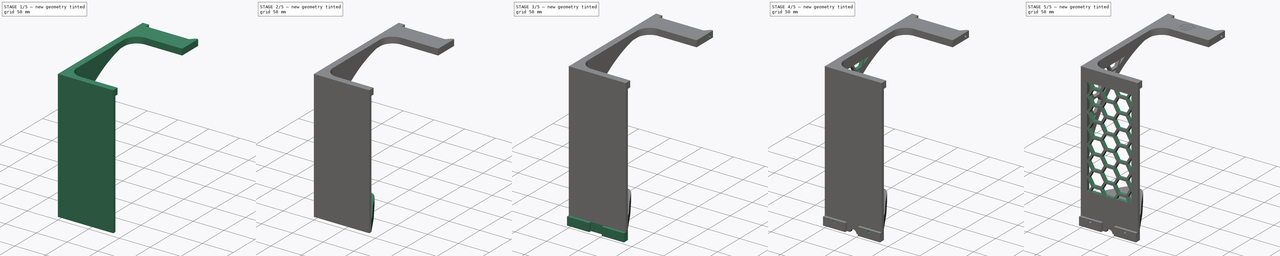
[diagram: build sequence overview — one tinted view per stage of 5, left to right]
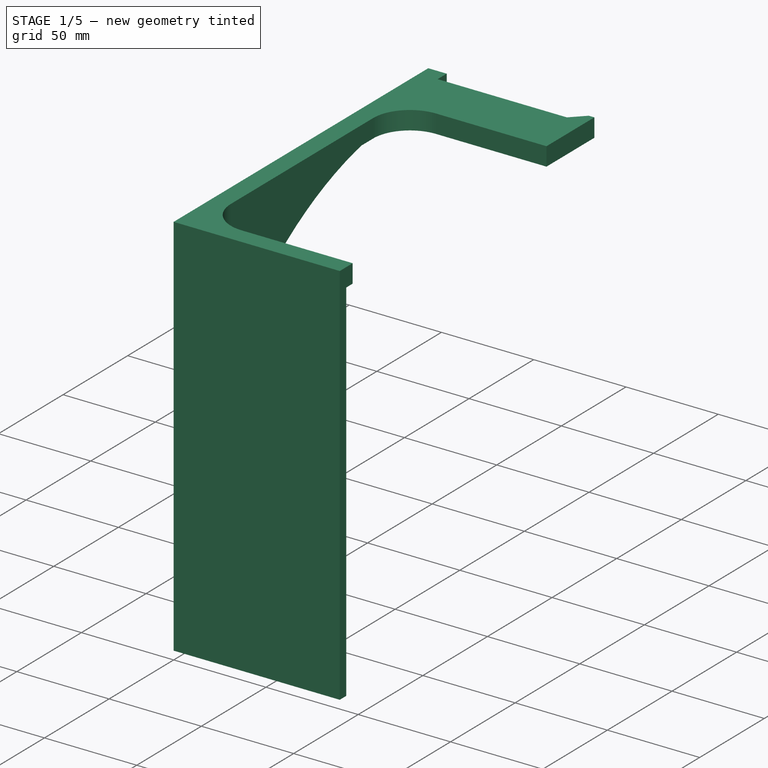
[diagram: stage 1 of 5 — iso view after this stage's code; geometry added in this stage tinted green]
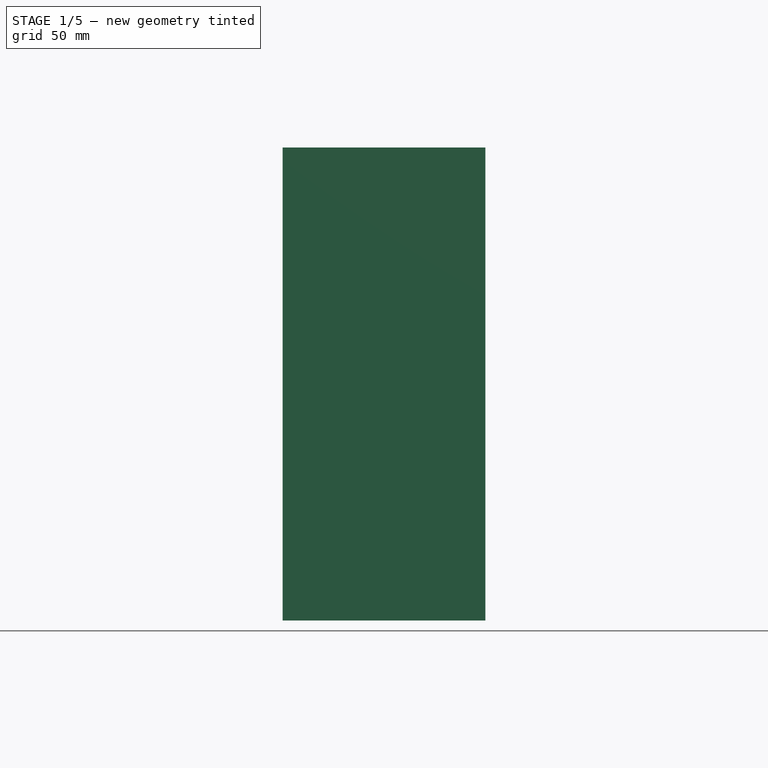
[diagram: stage 1 of 5 — front view after this stage's code; geometry added in this stage tinted green]
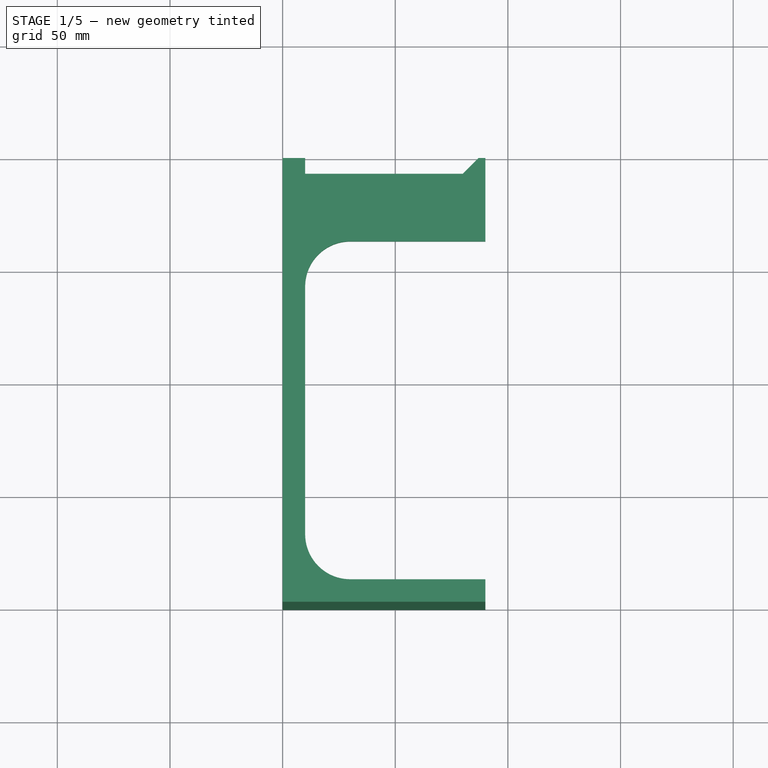
[diagram: stage 1 of 5 — top view after this stage's code; geometry added in this stage tinted green]
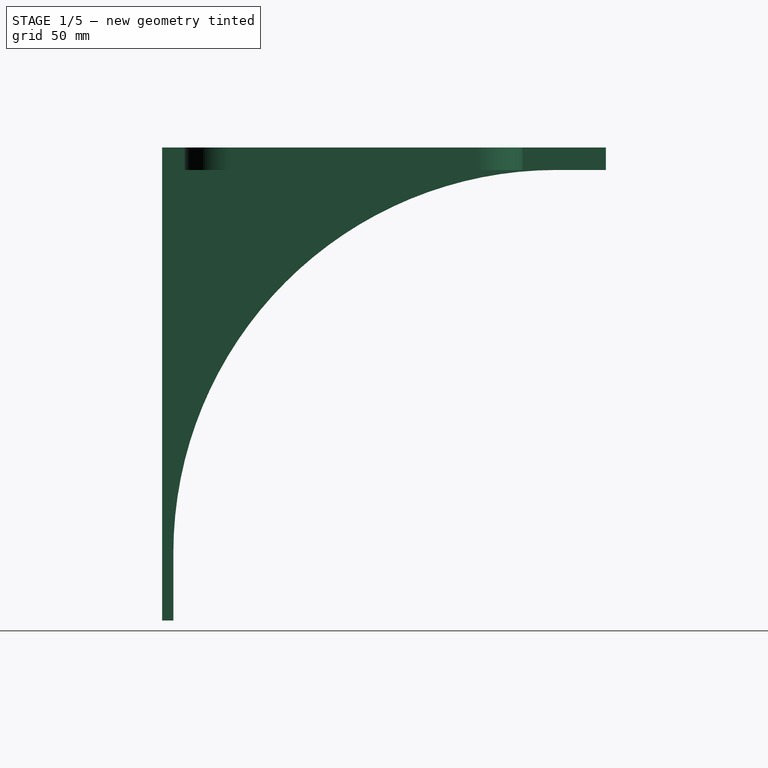
[diagram: stage 1 of 5 — right view after this stage's code; geometry added in this stage tinted green]
FCSTD DOCUMENT  (FreeCAD 1.0R38643 (Git))
Label: Fillament Spool Holder V2
License: All rights reserved
LicenseURL: https://en.wikipedia.org/wiki/All_rights_reserved
objects: Sketcher::SketchObject×18, PartDesign::Pocket×10, PartDesign::Pad×7, PartDesign::Plane×1, Image::ImagePlane×1, PartDesign::Body×1
note: 89 computed .brp shape members not serialized (recipe doc carries the construction recipe); baked Part::Feature solids carry a one-line shape summary decoded from their .brp

FEATURE [Sketcher::SketchObject] Sketch  label="Sketch Left Profile"
  ArcFitTolerance = 1e-06
  AttachmentSupport = -> [XY_Plane]
  FullyConstrained = true
  MakeInternals = false
  MapMode = 5
  sketch-geometry (16):
    g0: LineSegment StartX=0 StartY=0 StartZ=0 EndX=90 EndY=0 EndZ=0
    g1: LineSegment StartX=90 StartY=0 StartZ=0 EndX=90 EndY=10 EndZ=0
    g2: LineSegment StartX=90 StartY=10 StartZ=0 EndX=30 EndY=10 EndZ=0
    g3: LineSegment StartX=10 StartY=30 StartZ=0 EndX=10 EndY=140 EndZ=0
    g4: LineSegment StartX=30 StartY=160 StartZ=0 EndX=90 EndY=160 EndZ=0
    g5: LineSegment StartX=90 StartY=160 StartZ=0 EndX=90 EndY=197 EndZ=0
    g6: LineSegment StartX=90 StartY=197 StartZ=0 EndX=87 EndY=197 EndZ=0
    g7: LineSegment StartX=80 StartY=190 StartZ=0 EndX=10 EndY=190 EndZ=0
    g8: LineSegment StartX=0 StartY=197 StartZ=0 EndX=0 EndY=0 EndZ=0
    g9: ArcOfCircle CenterX=30 CenterY=140 CenterZ=0 NormalX=0 NormalY=0 NormalZ=1 AngleXU=0 Radius=20 StartAngle=1.5708 EndAngle=3.14159
    g10: GeomPoint [constr] X=10 Y=160 Z=0
    g11: ArcOfCircle CenterX=30 CenterY=30 CenterZ=0 NormalX=0 NormalY=0 NormalZ=1 AngleXU=0 Radius=20 StartAngle=3.14159 EndAngle=4.71239
    g12: GeomPoint [constr] X=10 Y=10 Z=0
    g13: LineSegment StartX=10 StartY=190 StartZ=0 EndX=10 EndY=197 EndZ=0
    g14: LineSegment StartX=10 StartY=197 StartZ=0 EndX=0 EndY=197 EndZ=0
    g15: LineSegment StartX=87 StartY=197 StartZ=0 EndX=80 EndY=190 EndZ=0
  constraints (43):
    c: Coincident(g-1,g0)
    c: PointOnObject(g0,g-1)
    c: Coincident(g0,g1)
    c: Vertical(g1)
    c: Coincident(g1,g2)
    c: Horizontal(g2)
    c: Vertical(g3)
    c: Horizontal(g4)
    c: Vertical(g5)
    c: Coincident(g5,g6)
    c: Horizontal(g6)
    c: PointOnObject(g8,g-2)
    c: Horizontal(g7)
    c: Coincident(g8,g0)
    c: Coincident(g4,g5)
    c: PointOnObject(g10,g3)
    c: PointOnObject(g10,g4)
    c: Tangent(g3,g9) = 1.5708
    c: Tangent(g4,g9) = 1.5708
    c: PointOnObject(g12,g3)
    c: PointOnObject(g12,g2)
    c: Tangent(g3,g11) = 1.5708
    c: Tangent(g2,g11) = 1.5708
    c: Equal(g11,g9)
    c: Coincident(g13,g14)
    c: Vertical(g13)
    c: Horizontal(g14)
    c: Coincident(g7,g13)
    c: Coincident(g8,g14)
    c: Distance(g8,g3) = 10
    c: Distance(g1,g1) = 10
    c: Vertical(g7,g3)
    c: Equal(g4,g2)
    c: Distance(g6,g6) = 3
    c: Horizontal(g6,g13)
    c: DistanceY(g5,g5) = 37
    c: Distance(g4,g7) = 30
    c: Radius(g11) = 20
    c: Distance(g2,g4) = 150
    c: Angle(g-1,g15) = -2.35619
    c: Coincident(g15,g6)
    c: Coincident(g7,g15)
    c: Distance(g5,g13) = 80
FEATURE [PartDesign::Pad] Pad  label="Pad Left Profile"
  Direction = (0,0,1)
  Length = 10
  Length2 = 10
  Profile = -> Sketch
  ReferenceAxis = -> Sketch [N_Axis]
  Refine = true
  Suppressed = false
  Type = 0
FEATURE [Sketcher::SketchObject] Sketch001  label="Sketch Bottom Profile"
  ArcFitTolerance = 1e-06
  AttachmentSupport = -> [Pad]
  ExternalGeometry = -> [Pad]
  FullyConstrained = true
  MakeInternals = false
  MapMode = 5
  Placement = pos=(0,0,0) rot=(1,0,0;3.14159rad)
  sketch-geometry (4):
    g0: LineSegment StartX=0 StartY=0 StartZ=0 EndX=0 EndY=-5 EndZ=0
    g1: LineSegment StartX=0 StartY=-5 StartZ=0 EndX=90 EndY=-5 EndZ=0
    g2: LineSegment StartX=90 StartY=-5 StartZ=0 EndX=90 EndY=0 EndZ=0
    g3: LineSegment StartX=90 StartY=0 StartZ=0 EndX=0 EndY=0 EndZ=0
  constraints (10):
    c: Coincident(g0,g1)
    c: Coincident(g1,g2)
    c: Coincident(g2,g3)
    c: Coincident(g3,g0)
    c: Vertical(g0)
    c: Vertical(g2)
    c: Horizontal(g1)
    c: Coincident(g0,g-1)
    c: Coincident(g2,g-4)
    c: Distance(g2,g2) = 5
FEATURE [PartDesign::Pad] Pad001  label="Pad Bottom"
  BaseFeature = -> Pad
  Direction = (0,0,-1)
  Length = 200
  Length2 = 10
  Profile = -> Sketch001
  ReferenceAxis = -> Sketch001 [N_Axis]
  Refine = true
  Suppressed = false
  Type = 0
FEATURE [Sketcher::SketchObject] Sketch002  label="Sketch Curved Brace"
  ArcFitTolerance = 1e-06
  AttachmentSupport = -> [Pad001]
  ExternalGeometry = -> [Pad001]
  FullyConstrained = true
  MakeInternals = false
  MapMode = 5
  Placement = pos=(0,0,0) rot=(0.57735,-0.57735,-0.57735;2.0944rad)
  sketch-geometry (5):
    g0: LineSegment [constr] StartX=-175 StartY=0 StartZ=0 EndX=-175 EndY=-170 EndZ=0
    g1: LineSegment [constr] StartX=-175 StartY=-170 StartZ=0 EndX=-5 EndY=-170 EndZ=0
    g2: LineSegment StartX=-5 StartY=-170 StartZ=0 EndX=-5 EndY=0 EndZ=0
    g3: LineSegment StartX=-5 StartY=0 StartZ=0 EndX=-175 EndY=0 EndZ=0
    g4: ArcOfCircle CenterX=-175 CenterY=-170 CenterZ=0 NormalX=0 NormalY=0 NormalZ=1 AngleXU=0 Radius=170 StartAngle=0 EndAngle=1.5708
  constraints (15):
    c: Coincident(g0,g1)
    c: Coincident(g1,g2)
    c: Coincident(g2,g3)
    c: Coincident(g3,g0)
    c: Vertical(g0)
    c: Vertical(g2)
    c: Horizontal(g1)
    c: Horizontal(g3)
    c: PointOnObject(g2,g-1)
    c: Distance(g2,g-1) = 5
    c: DistanceX(g3,g3) = 170
    c: DistanceY(g2,g2) = 170
    c: Coincident(g4,g0)
    c: Coincident(g4,g1)
    c: Radius(g4) = 170
FEATURE [PartDesign::Pad] Pad002  label="Pad Curved Brace"
  BaseFeature = -> Pad001
  Direction = (-1,0,0)
  Length = 5
  Length2 = 10
  Profile = -> Sketch002
  ReferenceAxis = -> Sketch002 [N_Axis]
  Refine = true
  Reversed = true
  Suppressed = false
  Type = 0
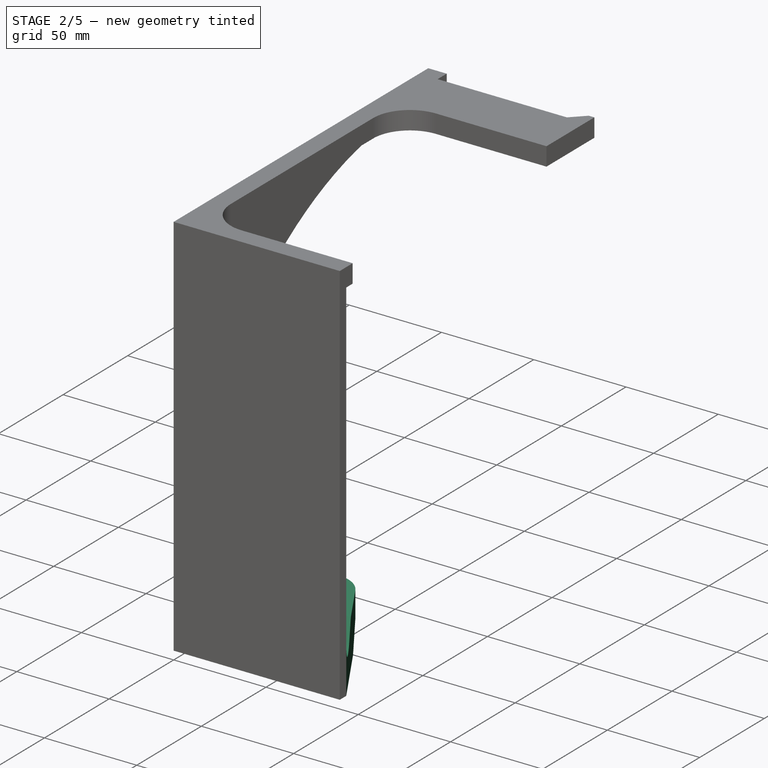
[diagram: stage 2 of 5 — iso view after this stage's code; geometry added in this stage tinted green]
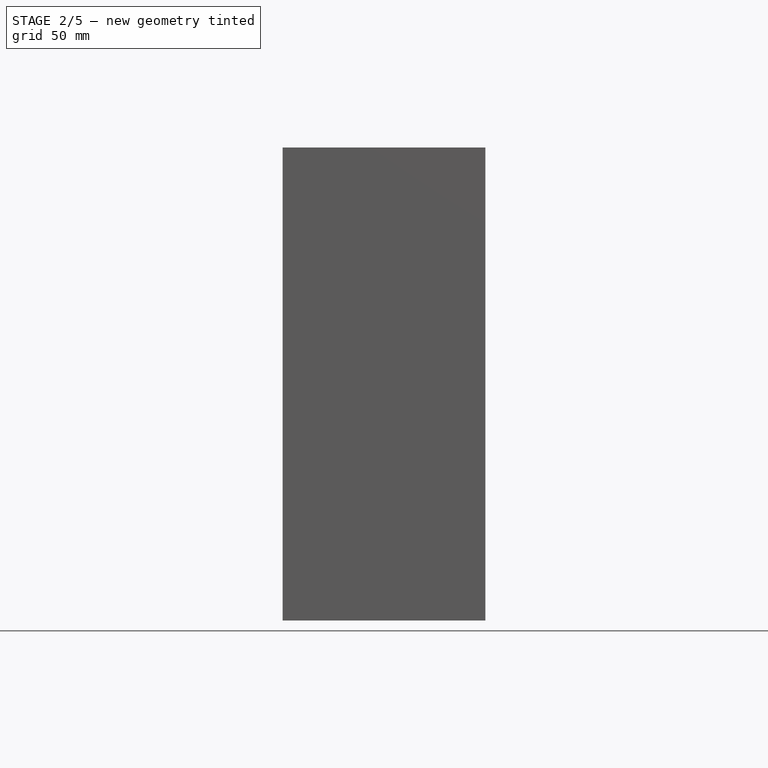
[diagram: stage 2 of 5 — front view after this stage's code; geometry added in this stage tinted green]
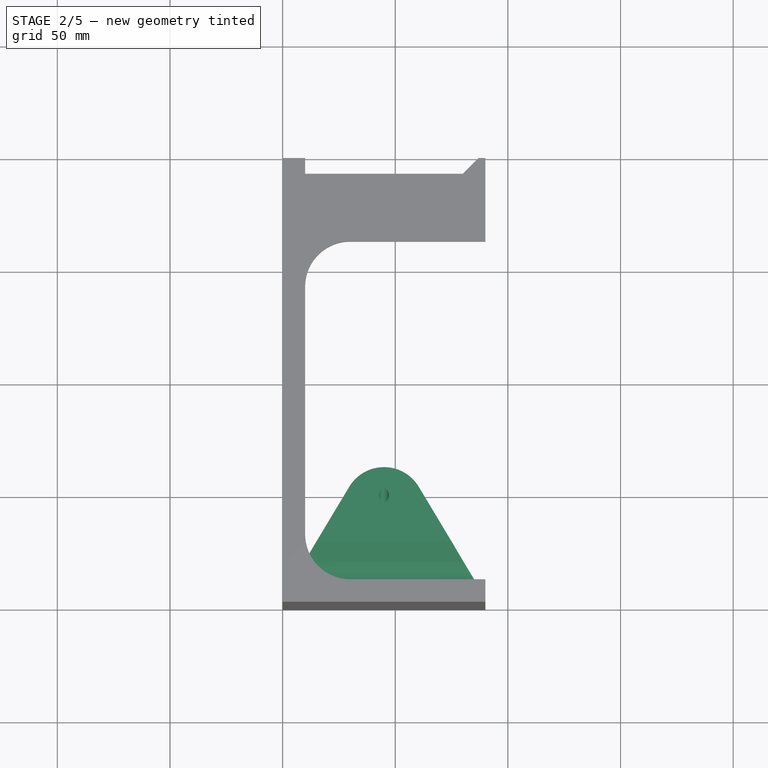
[diagram: stage 2 of 5 — top view after this stage's code; geometry added in this stage tinted green]
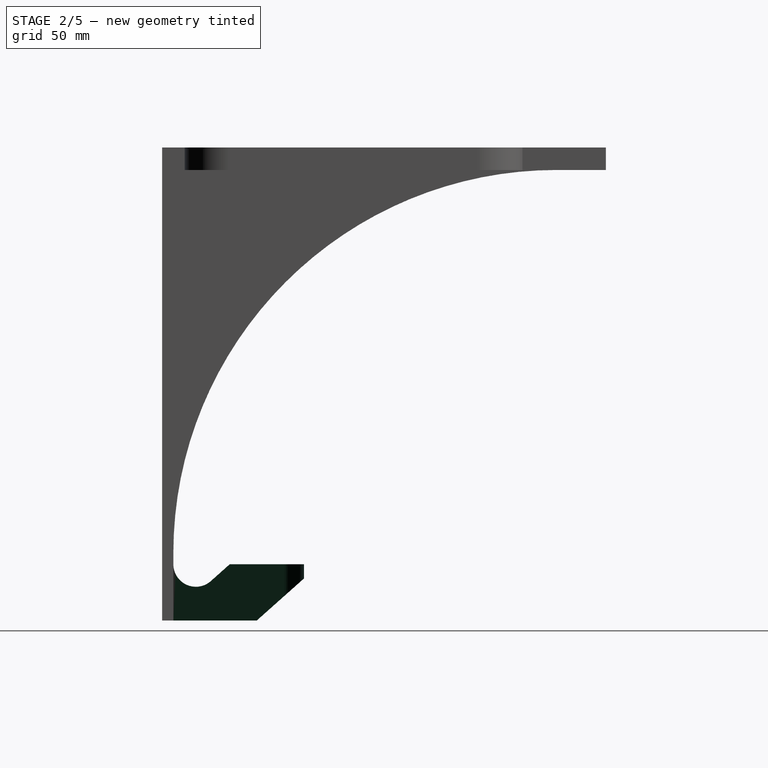
[diagram: stage 2 of 5 — right view after this stage's code; geometry added in this stage tinted green]
FEATURE [Sketcher::SketchObject] Sketch003  label="Sketch Filament Guide Block"
  ArcFitTolerance = 1e-06
  AttachmentSupport = -> [Pad002]
  ExternalGeometry = -> [Pad002]
  FullyConstrained = true
  MakeInternals = false
  MapMode = 5
  Placement = pos=(0,0,-200) rot=(1,0,0;3.14159rad)
  sketch-geometry (9):
    g0: LineSegment StartX=0 StartY=-5 StartZ=0 EndX=29.5663 EndY=-54.2629 EndZ=0
    g1: LineSegment StartX=60.4337 StartY=-54.2629 StartZ=0 EndX=90 EndY=-5 EndZ=0
    g2: ArcOfCircle CenterX=45 CenterY=-45 CenterZ=0 NormalX=0 NormalY=0 NormalZ=1 AngleXU=0 Radius=18 StartAngle=3.68214 EndAngle=5.74264
    g3: LineSegment StartX=90 StartY=-5 StartZ=0 EndX=45 EndY=-5 EndZ=0
    g4: LineSegment StartX=45 StartY=-5 StartZ=0 EndX=0 EndY=-5 EndZ=0
    g5: LineSegment [constr] StartX=0 StartY=0 StartZ=0 EndX=0 EndY=-5 EndZ=0
    g6: LineSegment [constr] StartX=0 StartY=-5 StartZ=0 EndX=90 EndY=-5 EndZ=0
    g7: LineSegment [constr] StartX=90 StartY=-5 StartZ=0 EndX=90 EndY=0 EndZ=0
    g8: LineSegment [constr] StartX=90 StartY=0 StartZ=0 EndX=0 EndY=0 EndZ=0
  constraints (23):
    c: Coincident(g4,g0)
    c: Coincident(g1,g3)
    c: Tangent(g0,g2) = -1.5708
    c: Tangent(g1,g2) = -1.5708
    c: Coincident(g3,g4)
    c: Equal(g3,g4)
    c: Vertical(g2,g3)
    c: Radius(g2) = 18
    c: DistanceY(g2,g3) = 40
    c: Coincident(g5,g6)
    c: Coincident(g6,g7)
    c: Coincident(g7,g8)
    c: Coincident(g8,g5)
    c: Vertical(g5)
    c: Vertical(g7)
    c: Horizontal(g6)
    c: Horizontal(g8)
    c: Coincident(g5,g-1)
    c: Distance(g5,g5) = 5
    c: DistanceX(g8,g8) = 90
    c: Coincident(g1,g6)
    c: PointOnObject(g3,g6)
    c: Coincident(g0,g5)
FEATURE [PartDesign::Pad] Pad003  label="Pad Filament guide Block"
  BaseFeature = -> Pad002
  Direction = (0,0,-1)
  Length = 25
  Length2 = 10
  Profile = -> Sketch003
  ReferenceAxis = -> Sketch003 [N_Axis]
  Refine = true
  Reversed = true
  Suppressed = false
  Type = 0
FEATURE [Sketcher::SketchObject] Sketch004  label="Sketch Cuttout in Guide Block"
  ArcFitTolerance = 1e-06
  AttachmentSupport = -> [Pad003]
  ExternalGeometry = -> [Pad003]
  FullyConstrained = true
  MakeInternals = false
  MapMode = 5
  Placement = pos=(90,0,0) rot=(0.57735,0.57735,0.57735;2.0944rad)
  sketch-geometry (5):
    g0: Circle CenterX=15 CenterY=-175 CenterZ=0 NormalX=0 NormalY=0 NormalZ=1 AngleXU=0 Radius=10
    g1: LineSegment [constr] StartX=0 StartY=-200 StartZ=0 EndX=25 EndY=-200 EndZ=0
    g2: LineSegment [constr] StartX=25 StartY=-200 StartZ=0 EndX=25 EndY=-175 EndZ=0
    g3: LineSegment [constr] StartX=25 StartY=-175 StartZ=0 EndX=0 EndY=-175 EndZ=0
    g4: LineSegment [constr] StartX=0 StartY=-175 StartZ=0 EndX=0 EndY=-200 EndZ=0
  constraints (15):
    c: Diameter(g0) = 20
    c: Coincident(g1,g2)
    c: Coincident(g2,g3)
    c: Coincident(g3,g4)
    c: Coincident(g4,g1)
    c: Horizontal(g1)
    c: Horizontal(g3)
    c: Vertical(g2)
    c: Vertical(g4)
    c: Distance(g2,g4) = 25
    c: Distance(g1,g3) = 25
    c: PointOnObject(g1,g-2)
    c: PointOnObject(g0,g3)
    c: Distance(g-1,g1) = 200
    c: Distance(g0,g-2) = 15
FEATURE [PartDesign::Pocket] Pocket  label="Pocket Cuttout in Guide Block"
  BaseFeature = -> Pad003
  Direction = (-1,0,0)
  Length = 5
  Length2 = 5
  Profile = -> Sketch004
  ReferenceAxis = -> Sketch004 [N_Axis]
  Refine = true
  Suppressed = false
  Type = 1
FEATURE [Sketcher::SketchObject] Sketch005  label="Sketch Filament Path"
  ArcFitTolerance = 1e-06
  AttachmentOffset = pos=(0,0,45) rot=(0,0,1;0rad)
  AttachmentSupport = -> [YZ_Plane]
  FullyConstrained = true
  MakeInternals = false
  MapMode = 5
  Placement = pos=(45,0,0) rot=(0.57735,0.57735,0.57735;2.0944rad)
  sketch-geometry (1):
    g0: LineSegment StartX=247 StartY=0 StartZ=0 EndX=-1.47e-14 EndY=-220 EndZ=0
  constraints (4):
    c: PointOnObject(g0,g-1)
    c: PointOnObject(g0,g-2)
    c: Distance(g0,g-2) = 247
    c: DistanceY(g0,g-1) = 220
FEATURE [PartDesign::Plane] DatumPlane  label="DatumPlane Normal to Filament Path"
  AttachmentSupport = -> [Sketch005]
  Length = 93.6394
  MapMode = 7
  Placement = pos=(45,247,-3.4e-15) rot=(0,0.409198,0.912446;3.14159rad)
  ResizeMode = 0
  Width = 223.219
FEATURE [Sketcher::SketchObject] Sketch006  label="Sketch Filamanet Guide PTFE Hole"
  ArcFitTolerance = 1e-06
  AttachmentSupport = -> [DatumPlane]
  FullyConstrained = true
  MakeInternals = false
  MapMode = 5
  Placement = pos=(45,247,2.02e-14) rot=(0,0.409198,0.912446;3.14159rad)
  sketch-geometry (1):
    g0: Circle CenterX=0 CenterY=0 CenterZ=0 NormalX=0 NormalY=0 NormalZ=1 AngleXU=0 Radius=2.15
  constraints (2):
    c: Diameter(g0) = 4.3
    c: Coincident(g0,g-1)
FEATURE [PartDesign::Pocket] Pocket001  label="Pocket Filamament Guide PTFE Hole"
  BaseFeature = -> Pocket
  Direction = (0,-0.746742,-0.665114)
  Length = 5
  Length2 = 5
  Profile = -> Sketch006
  ReferenceAxis = -> Sketch006 [N_Axis]
  Refine = true
  Suppressed = false
  Type = 1
FEATURE [Sketcher::SketchObject] Sketch007  label="Sketch Parallel Cuttouts in Filament Guide Block"
  ArcFitTolerance = 1e-06
  AttachmentSupport = -> [Pocket001]
  ExternalGeometry = -> [Sketch005,Pocket001]
  FullyConstrained = true
  MakeInternals = false
  MapMode = 5
  Placement = pos=(90,0,0) rot=(0.57735,0.57735,0.57735;2.0944rad)
  sketch-geometry (9):
    g0: LineSegment StartX=36.586 StartY=-169.165 StartZ=0 EndX=21.6511 EndY=-182.467 EndZ=0
    g1: LineSegment StartX=21.6511 StartY=-182.467 StartZ=0 EndX=8.34886 EndY=-167.533 EndZ=0
    g2: LineSegment StartX=8.34886 StartY=-167.533 StartZ=0 EndX=23.2837 EndY=-154.23 EndZ=0
    g3: LineSegment StartX=23.2837 StartY=-154.23 StartZ=0 EndX=36.586 EndY=-169.165 EndZ=0
    g4: Circle [constr] CenterX=15 CenterY=-175 CenterZ=0 NormalX=0 NormalY=0 NormalZ=1 AngleXU=0 Radius=10
    g5: LineSegment StartX=89.609 StartY=-157.595 StartZ=0 EndX=-9e-16 EndY=-237.409 EndZ=0
    g6: LineSegment StartX=-9e-16 StartY=-237.409 StartZ=0 EndX=19.9534 EndY=-259.811 EndZ=0
    g7: LineSegment StartX=19.9534 StartY=-259.811 StartZ=0 EndX=109.562 EndY=-179.998 EndZ=0
    g8: LineSegment StartX=109.562 StartY=-179.998 StartZ=0 EndX=89.609 EndY=-157.595 EndZ=0
  constraints (26):
    c: Coincident(g0,g1)
    c: Coincident(g1,g2)
    c: Coincident(g2,g3)
    c: Coincident(g3,g0)
    c: Tangent(g0,g4) = 1.5708
    c: Coincident(g5,g6)
    c: Coincident(g6,g7)
    c: Coincident(g7,g8)
    c: Coincident(g8,g5)
    c: Perpendicular(g8,g5)
    c: Parallel(g5,g7)
    c: Parallel(g6,g8)
    c: Distance(g8,g8) = 30
    c: Distance(g7,g7) = 120
    c: PointOnObject(g5,g-2)
    c: Perpendicular(g0,g1)
    c: Perpendicular(g1,g2)
    c: PointOnObject(g1,g4)
    c: Perpendicular(g3,g2)
    c: Distance(g2,g2) = 20
    c: Distance(g4,g-2) = 15
    c: Diameter(g4) = 20
    c: Distance(g4,g-1) = 175
    c: Parallel(g0,g-3)
    c: Parallel(g5,g-3)
    c: Distance(g5,g-3) = 13
FEATURE [PartDesign::Pocket] Pocket002  label="Pocket Parallel Cuttouts in Filament Guide Block"
  BaseFeature = -> Pocket001
  Direction = (-1,0,0)
  Length = 5
  Length2 = 5
  Profile = -> Sketch007
  ReferenceAxis = -> Sketch007 [N_Axis]
  Refine = true
  Suppressed = false
  Type = 1
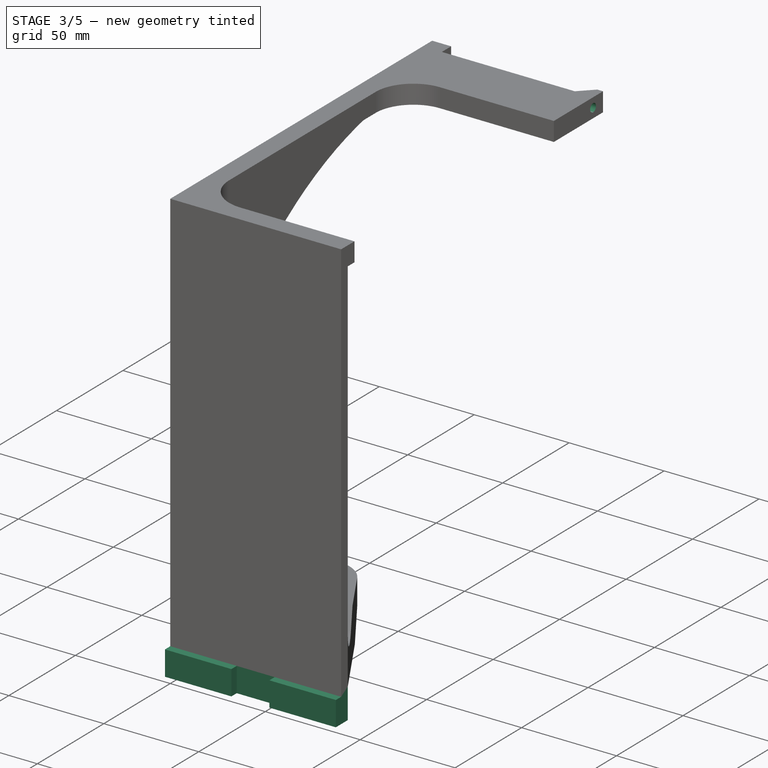
[diagram: stage 3 of 5 — iso view after this stage's code; geometry added in this stage tinted green]
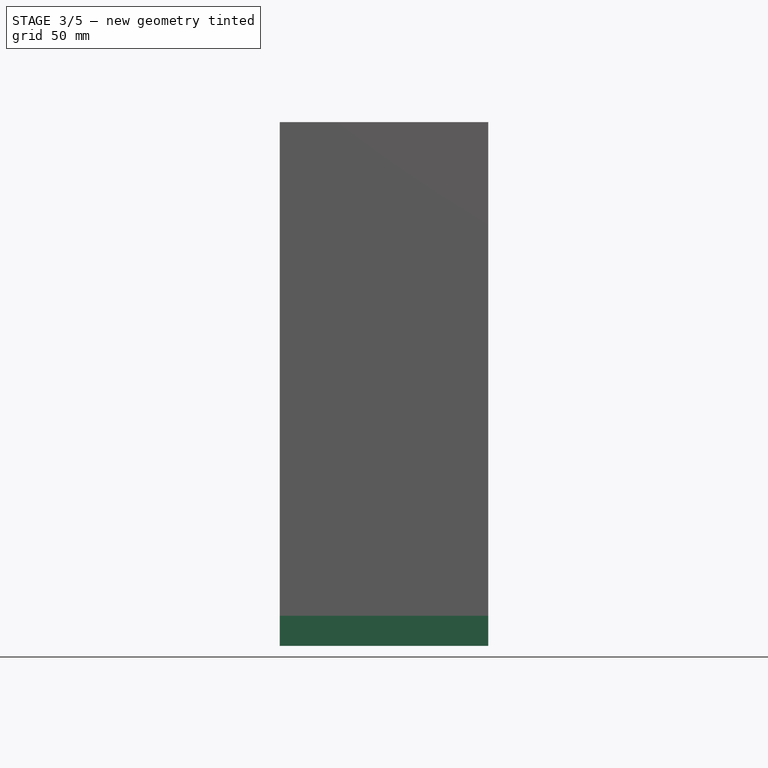
[diagram: stage 3 of 5 — front view after this stage's code; geometry added in this stage tinted green]
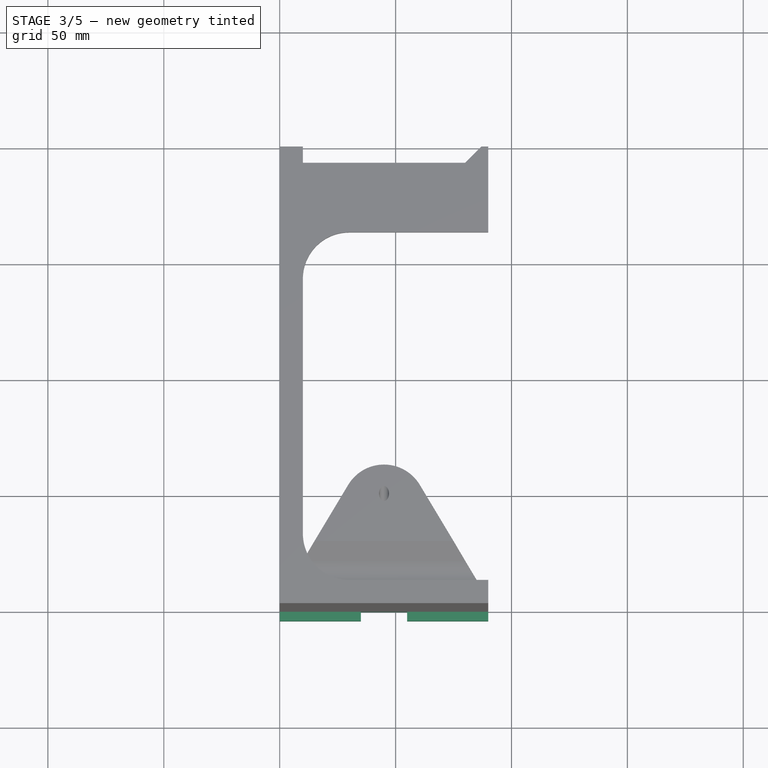
[diagram: stage 3 of 5 — top view after this stage's code; geometry added in this stage tinted green]
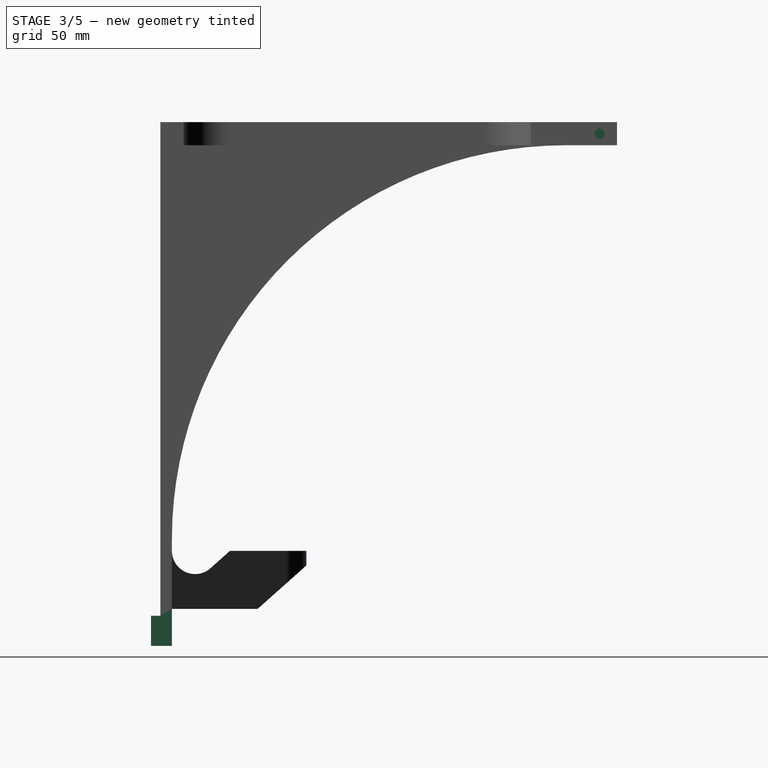
[diagram: stage 3 of 5 — right view after this stage's code; geometry added in this stage tinted green]
FEATURE [Sketcher::SketchObject] Sketch008  label="Sketch PTFE Bushing Hole"
  ArcFitTolerance = 1e-06
  AttachmentSupport = -> [Pocket002]
  FullyConstrained = false
  MakeInternals = false
  MapMode = 5
  Placement = pos=(90,0,0) rot=(0.57735,0.57735,0.57735;2.0944rad)
  sketch-geometry (3):
    g0: LineSegment [constr] StartX=190 StartY=10 StartZ=0 EndX=189.5 EndY=5 EndZ=0
    g1: LineSegment [constr] StartX=189.5 StartY=5 StartZ=0 EndX=190 EndY=2e-16 EndZ=0
    g2: Circle CenterX=189.5 CenterY=5 CenterZ=0 NormalX=0 NormalY=0 NormalZ=1 AngleXU=0 Radius=2.2
  constraints (4):
    c: Coincident(g0,g1)
    c: Equal(g0,g1)
    c: Diameter(g2) = 4.4
    c: Coincident(g2,g0)
FEATURE [PartDesign::Pocket] Pocket003  label="Pocket PTFE Bushing Hole"
  BaseFeature = -> Pocket002
  Direction = (-1,0,0)
  Length = 85
  Length2 = 5
  Profile = -> Sketch008
  ReferenceAxis = -> Sketch008 [N_Axis]
  Refine = true
  Suppressed = false
  Type = 0
FEATURE [Sketcher::SketchObject] Sketch009  label="Sketch Screw Pad Ledge"
  ArcFitTolerance = 1e-06
  AttachmentSupport = -> [Pocket003]
  ExternalGeometry = -> [Pocket003]
  FullyConstrained = true
  MakeInternals = false
  MapMode = 5
  Placement = pos=(0,0,-200) rot=(1,0,0;3.14159rad)
  sketch-geometry (4):
    g0: LineSegment StartX=0 StartY=0 StartZ=0 EndX=0 EndY=-5 EndZ=0
    g1: LineSegment StartX=0 StartY=-5 StartZ=0 EndX=90 EndY=-5 EndZ=0
    g2: LineSegment StartX=90 StartY=-5 StartZ=0 EndX=90 EndY=0 EndZ=0
    g3: LineSegment StartX=90 StartY=0 StartZ=0 EndX=0 EndY=0 EndZ=0
  constraints (10):
    c: Coincident(g0,g1)
    c: Coincident(g1,g2)
    c: Coincident(g2,g3)
    c: Coincident(g3,g0)
    c: Vertical(g0)
    c: Vertical(g2)
    c: Horizontal(g1)
    c: Horizontal(g3)
    c: Coincident(g0,g-1)
    c: Coincident(g1,g-4)
FEATURE [PartDesign::Pad] Pad004  label="Pad Screw Pad Ledge"
  BaseFeature = -> Pocket003
  Direction = (0,0,-1)
  Length = 16
  Length2 = 10
  Profile = -> Sketch009
  ReferenceAxis = -> Sketch009 [N_Axis]
  Refine = true
  Suppressed = false
  Type = 0
FEATURE [Sketcher::SketchObject] Sketch010  label="Sketch Screw Pads"
  ArcFitTolerance = 1e-06
  AttachmentSupport = -> [Pad004]
  ExternalGeometry = -> [Pad004]
  FullyConstrained = true
  MakeInternals = false
  MapMode = 5
  Placement = pos=(0,0,0) rot=(1,0,0;1.5708rad)
  sketch-geometry (8):
    g0: LineSegment StartX=90 StartY=-216 StartZ=0 EndX=90 EndY=-203 EndZ=0
    g1: LineSegment StartX=90 StartY=-203 StartZ=0 EndX=55 EndY=-203 EndZ=0
    g2: LineSegment StartX=55 StartY=-203 StartZ=0 EndX=55 EndY=-216 EndZ=0
    g3: LineSegment StartX=55 StartY=-216 StartZ=0 EndX=90 EndY=-216 EndZ=0
    g4: LineSegment StartX=0 StartY=-216 StartZ=0 EndX=35 EndY=-216 EndZ=0
    g5: LineSegment StartX=35 StartY=-216 StartZ=0 EndX=35 EndY=-203 EndZ=0
    g6: LineSegment StartX=35 StartY=-203 StartZ=0 EndX=0 EndY=-203 EndZ=0
    g7: LineSegment StartX=0 StartY=-203 StartZ=0 EndX=0 EndY=-216 EndZ=0
  constraints (22):
    c: Coincident(g0,g1)
    c: Coincident(g1,g2)
    c: Coincident(g2,g3)
    c: Coincident(g3,g0)
    c: Vertical(g0)
    c: Vertical(g2)
    c: Horizontal(g1)
    c: Horizontal(g3)
    c: Distance(g0,g2) = 35
    c: Distance(g1,g3) = 13
    c: Coincident(g0,g-3)
    c: Coincident(g4,g5)
    c: Coincident(g5,g6)
    c: Coincident(g6,g7)
    c: Coincident(g7,g4)
    c: Horizontal(g4)
    c: Horizontal(g6)
    c: Vertical(g5)
    c: Vertical(g7)
    c: Distance(g5,g7) = 35
    c: Distance(g4,g6) = 13
    c: Coincident(g4,g-3)
FEATURE [PartDesign::Pad] Pad005  label="Pad Screw Pads"
  BaseFeature = -> Pad004
  Direction = (0,-1,2e-16)
  Length = 4
  Length2 = 10
  Profile = -> Sketch010
  ReferenceAxis = -> Sketch010 [N_Axis]
  Refine = true
  Suppressed = false
  Type = 0
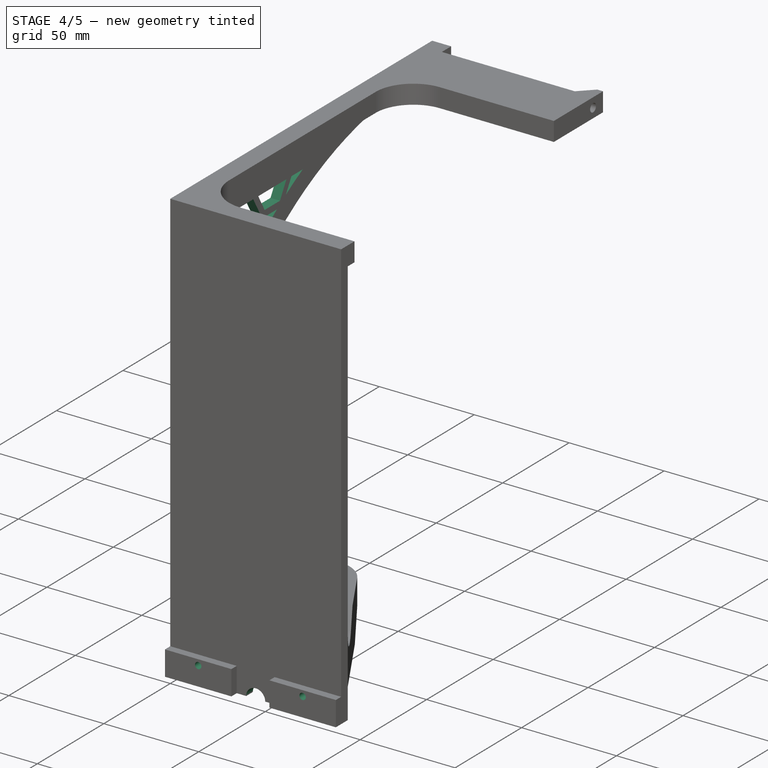
[diagram: stage 4 of 5 — iso view after this stage's code; geometry added in this stage tinted green]
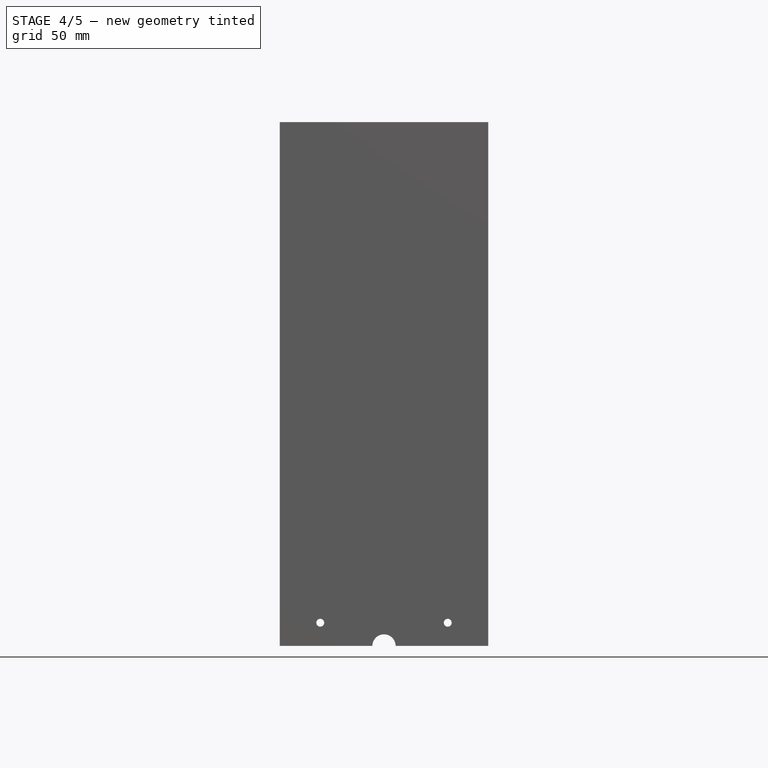
[diagram: stage 4 of 5 — front view after this stage's code; geometry added in this stage tinted green]
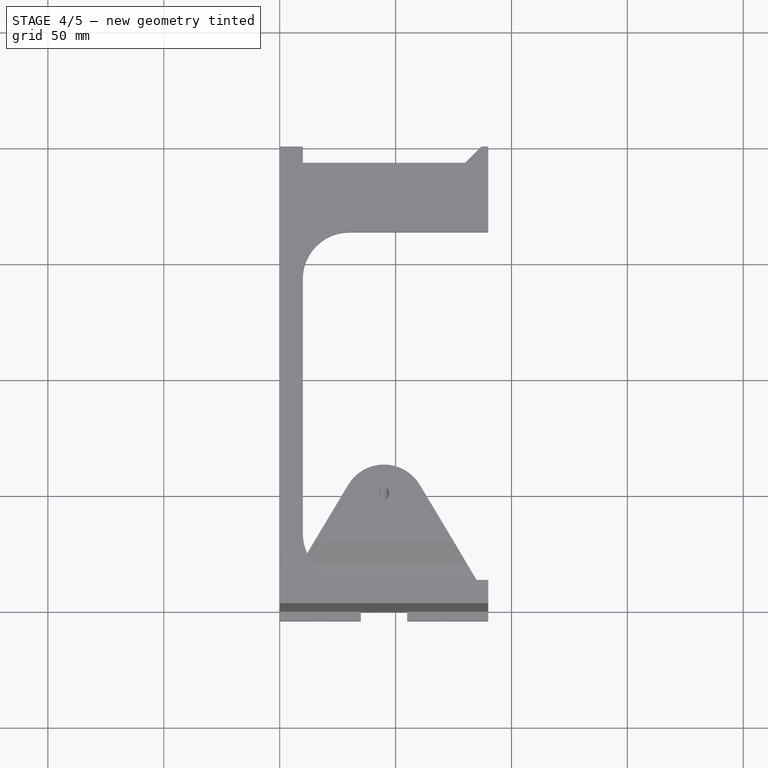
[diagram: stage 4 of 5 — top view after this stage's code; geometry added in this stage tinted green]
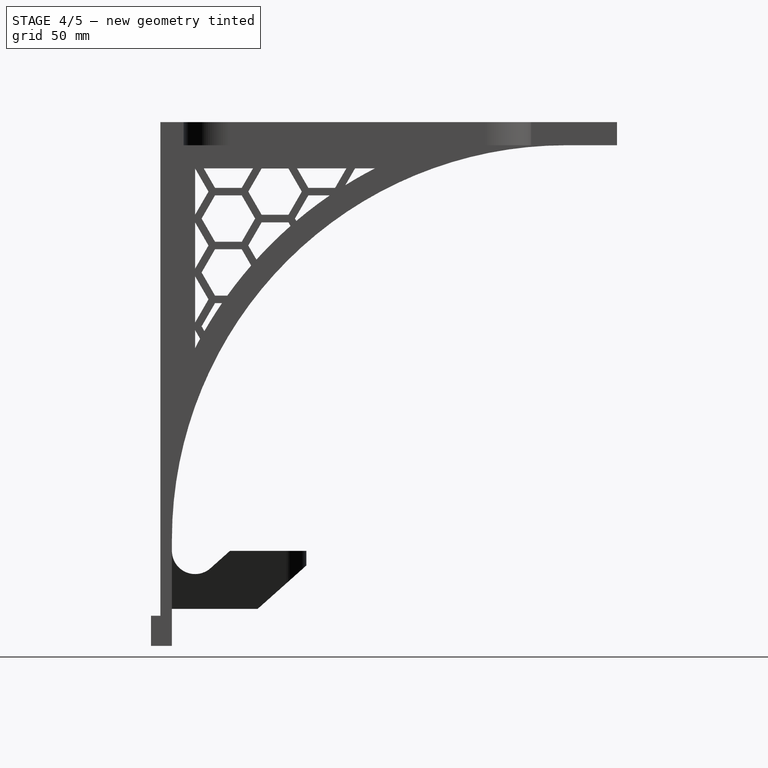
[diagram: stage 4 of 5 — right view after this stage's code; geometry added in this stage tinted green]
FEATURE [Sketcher::SketchObject] Sketch011  label="Sketch Screw Holes"
  ArcFitTolerance = 1e-06
  AttachmentSupport = -> [Pad005]
  FullyConstrained = true
  MakeInternals = false
  MapMode = 5
  Placement = pos=(0,-4,0) rot=(1,0,0;1.5708rad)
  sketch-geometry (2):
    g0: Circle CenterX=17.5 CenterY=-206 CenterZ=0 NormalX=0 NormalY=0 NormalZ=1 AngleXU=0 Radius=1.7
    g1: Circle CenterX=72.5 CenterY=-206 CenterZ=0 NormalX=0 NormalY=0 NormalZ=1 AngleXU=0 Radius=1.7
  constraints (6):
    c: Diameter(g0) = 3.4
    c: Equal(g0,g1)
    c: Horizontal(g0,g1)
    c: Distance(g0,g-2) = 17.5
    c: Distance(g1,g-2) = 72.5
    c: Distance(g0,g-1) = 206
FEATURE [PartDesign::Pocket] Pocket004  label="Pocket Screw Holes"
  BaseFeature = -> Pad005
  Direction = (0,1,-2e-16)
  Length = 5
  Length2 = 5
  Profile = -> Sketch011
  ReferenceAxis = -> Sketch011 [N_Axis]
  Refine = true
  Suppressed = false
  Type = 1
FEATURE [Sketcher::SketchObject] Sketch012  label="Sketch Filament Grove"
  ArcFitTolerance = 1e-06
  AttachmentSupport = -> [Pocket004]
  ExternalGeometry = -> [Sketch005,Pocket004]
  FullyConstrained = true
  MakeInternals = false
  MapMode = 5
  Placement = pos=(0,5,0) rot=(0,0.707107,0.707107;3.14159rad)
  sketch-geometry (1):
    g0: Circle CenterX=-45 CenterY=-216 CenterZ=0 NormalX=0 NormalY=0 NormalZ=1 AngleXU=0 Radius=5
  constraints (3):
    c: PointOnObject(g0,g-4)
    c: Diameter(g0) = 10
    c: PointOnObject(g0,g-3)
FEATURE [PartDesign::Pocket] Pocket005  label="Pocket Filament Groove"
  BaseFeature = -> Pocket004
  Direction = (0,-1,2e-16)
  Length = 5
  Length2 = 5
  Profile = -> Sketch012
  ReferenceAxis = -> Sketch012 [N_Axis]
  Refine = true
  Suppressed = false
  Type = 1
FEATURE [Sketcher::SketchObject] Sketch013  label="Sketch Screw Head Recesses"
  ArcFitTolerance = 1e-06
  AttachmentSupport = -> [Pocket005]
  ExternalGeometry = -> [Pocket005]
  FullyConstrained = true
  MakeInternals = false
  MapMode = 5
  Placement = pos=(0,0,0) rot=(1,0,0;1.5708rad)
  sketch-geometry (2):
    g0: Circle CenterX=17.5 CenterY=-206 CenterZ=0 NormalX=0 NormalY=0 NormalZ=1 AngleXU=0 Radius=2.7
    g1: Circle CenterX=72.5 CenterY=-206 CenterZ=0 NormalX=0 NormalY=0 NormalZ=1 AngleXU=0 Radius=2.7
  constraints (4):
    c: Coincident(g0,g-4)
    c: Coincident(g1,g-3)
    c: Diameter(g1) = 5.4
    c: Equal(g0,g1)
FEATURE [PartDesign::Pocket] Pocket006  label="Pocket Screw Head Recesses"
  BaseFeature = -> Pocket005
  Direction = (0,1,-2e-16)
  Length = 5
  Length2 = 5
  Profile = -> Sketch013
  ReferenceAxis = -> Sketch013 [N_Axis]
  Refine = true
  Suppressed = false
  Type = 1
FEATURE [Sketcher::SketchObject] Sketch014  label="Sketch Side Hexagons"
  ArcFitTolerance = 1e-06
  AttachmentSupport = -> [Pocket006]
  ExternalGeometry = -> [Pocket006]
  FullyConstrained = false
  MakeInternals = false
  MapMode = 5
  Placement = pos=(5,0,0) rot=(0.57735,0.57735,0.57735;2.0944rad)
  sketch-geometry (71):
    g0: LineSegment [constr] StartX=15 StartY=-10 StartZ=0 EndX=92.5379 EndY=-10 EndZ=0
    g1: LineSegment [constr] StartX=15 StartY=-10 StartZ=0 EndX=15 EndY=-87.5379 EndZ=0
    g2: LineSegment [constr] StartX=92.5379 StartY=-10 StartZ=0 EndX=97.1191 EndY=-18.8889 EndZ=0
    g3: ArcOfCircle [constr] CenterX=175 CenterY=-170 CenterZ=0 NormalX=0 NormalY=0 NormalZ=1 AngleXU=0 Radius=180 StartAngle=2.04668 EndAngle=2.66571
    g4: LineSegment StartX=20.7755 StartY=-20 StartZ=0 EndX=15 EndY=-10 EndZ=0
    g5: LineSegment StartX=15 StartY=-30 StartZ=0 EndX=20.7755 EndY=-20 EndZ=0
    g6: Circle [constr] CenterX=9.23051 CenterY=-20 CenterZ=0 NormalX=0 NormalY=0 NormalZ=1 AngleXU=0 Radius=11.545
    g7: LineSegment StartX=15 StartY=-53.25 StartZ=0 EndX=20.7755 EndY=-43.25 EndZ=0
    g8: LineSegment StartX=20.7755 StartY=-43.25 StartZ=0 EndX=15 EndY=-33.25 EndZ=0
    g9: Circle [constr] CenterX=9.23051 CenterY=-43.25 CenterZ=0 NormalX=0 NormalY=0 NormalZ=1 AngleXU=0 Radius=11.545
    g10: LineSegment StartX=15 StartY=-10 StartZ=0 EndX=15 EndY=-30 EndZ=0
    g11: LineSegment StartX=15 StartY=-33.25 StartZ=0 EndX=15 EndY=-53.25 EndZ=0
    g12: LineSegment StartX=15 StartY=-76.5 StartZ=0 EndX=20.7755 EndY=-66.5 EndZ=0
    g13: LineSegment StartX=20.7755 StartY=-66.5 StartZ=0 EndX=15 EndY=-56.5 EndZ=0
    g14: Circle [constr] CenterX=9.23051 CenterY=-66.5 CenterZ=0 NormalX=0 NormalY=0 NormalZ=1 AngleXU=0 Radius=11.545
    g15: LineSegment StartX=15 StartY=-56.5 StartZ=0 EndX=15 EndY=-76.5 EndZ=0
    g16: LineSegment StartX=17.1559 StartY=-83.4828 StartZ=0 EndX=15 EndY=-79.75 EndZ=0
    g17: Circle [constr] CenterX=9.18574 CenterY=-89.724 CenterZ=0 NormalX=0 NormalY=0 NormalZ=1 AngleXU=0 Radius=11.545
    g18: LineSegment StartX=15 StartY=-79.75 StartZ=0 EndX=15 EndY=-87.5379 EndZ=0
    g19: ArcOfCircle CenterX=175 CenterY=-170 CenterZ=0 NormalX=0 NormalY=0 NormalZ=1 AngleXU=0 Radius=180 StartAngle=2.6402 EndAngle=2.66571
    g20: LineSegment StartX=40.9046 StartY=-31.625 StartZ=0 EndX=35.1321 EndY=-21.6267 EndZ=0
    g21: LineSegment StartX=35.1321 StartY=-21.6267 StartZ=0 EndX=23.5871 EndY=-21.6267 EndZ=0
    g22: LineSegment StartX=23.5871 StartY=-21.6267 StartZ=0 EndX=17.8146 EndY=-31.625 EndZ=0
    g23: LineSegment StartX=17.8146 StartY=-31.625 StartZ=0 EndX=23.5871 EndY=-41.6233 EndZ=0
    g24: LineSegment StartX=23.5871 StartY=-41.6233 StartZ=0 EndX=35.1321 EndY=-41.6233 EndZ=0
    g25: LineSegment StartX=35.1321 StartY=-41.6233 StartZ=0 EndX=40.9046 EndY=-31.625 EndZ=0
    g26: Circle [constr] CenterX=29.3596 CenterY=-31.625 CenterZ=0 NormalX=0 NormalY=0 NormalZ=1 AngleXU=0 Radius=11.545
    g27: LineSegment StartX=18.7531 StartY=-10 StartZ=0 EndX=23.5911 EndY=-18.3767 EndZ=0
    g28: LineSegment StartX=23.5911 StartY=-18.3767 StartZ=0 EndX=35.1361 EndY=-18.3767 EndZ=0
    g29: LineSegment StartX=35.1361 StartY=-18.3767 StartZ=0 EndX=39.9741 EndY=-10 EndZ=0
    g30: Circle [constr] CenterX=29.3636 CenterY=-8.37847 CenterZ=0 NormalX=0 NormalY=0 NormalZ=1 AngleXU=0 Radius=11.545
    g31: LineSegment StartX=18.7531 StartY=-10 StartZ=0 EndX=39.9741 EndY=-10 EndZ=0
    g32: LineSegment StartX=39.176 StartY=-51.8821 StartZ=0 EndX=35.1281 EndY=-44.8733 EndZ=0
    g33: LineSegment StartX=35.1281 StartY=-44.8733 StartZ=0 EndX=23.5911 EndY=-44.8733 EndZ=0
    g34: LineSegment StartX=23.5911 StartY=-44.8733 StartZ=0 EndX=17.8146 EndY=-54.875 EndZ=0
    g35: LineSegment StartX=17.8146 StartY=-54.875 StartZ=0 EndX=23.5891 EndY=-64.8733 EndZ=0
    g36: LineSegment StartX=23.5891 StartY=-64.8733 StartZ=0 EndX=28.8892 EndY=-64.8733 EndZ=0
    g37: Circle [constr] CenterX=29.3596 CenterY=-54.8738 CenterZ=0 NormalX=0 NormalY=0 NormalZ=1 AngleXU=0 Radius=11.545
    g38: ArcOfCircle CenterX=175 CenterY=-170 CenterZ=0 NormalX=0 NormalY=0 NormalZ=1 AngleXU=0 Radius=180 StartAngle=2.42581 EndAngle=2.5179
    g39: LineSegment StartX=26.6048 StartY=-68.1233 StartZ=0 EndX=23.5911 EndY=-68.1233 EndZ=0
    g40: LineSegment StartX=23.5911 StartY=-68.1233 StartZ=0 EndX=17.8146 EndY=-78.125 EndZ=0
    g41: LineSegment StartX=17.8146 StartY=-78.125 StartZ=0 EndX=19.0066 EndY=-80.1888 EndZ=0
    g42: Circle [constr] CenterX=29.3596 CenterY=-78.1238 CenterZ=0 NormalX=0 NormalY=0 NormalZ=1 AngleXU=0 Radius=11.545
    g43: ArcOfCircle CenterX=175 CenterY=-170 CenterZ=0 NormalX=0 NormalY=0 NormalZ=1 AngleXU=0 Radius=180 StartAngle=2.53997 EndAngle=2.6192
    g44: LineSegment StartX=61.0387 StartY=-20.0052 StartZ=0 EndX=55.2662 EndY=-10.0069 EndZ=0
    g45: LineSegment StartX=55.2662 StartY=-10.0069 StartZ=0 EndX=43.7212 EndY=-10.0069 EndZ=0
    g46: LineSegment StartX=43.7212 StartY=-10.0069 StartZ=0 EndX=37.9487 EndY=-20.0052 EndZ=0
    g47: LineSegment StartX=37.9487 StartY=-20.0052 StartZ=0 EndX=43.7212 EndY=-30.0035 EndZ=0
    g48: LineSegment StartX=43.7212 StartY=-30.0035 StartZ=0 EndX=55.2662 EndY=-30.0035 EndZ=0
    g49: LineSegment StartX=55.2662 StartY=-30.0035 StartZ=0 EndX=61.0387 EndY=-20.0052 EndZ=0
    g50: Circle [constr] CenterX=49.4937 CenterY=-20.0052 CenterZ=0 NormalX=0 NormalY=0 NormalZ=1 AngleXU=0 Radius=11.545
    g51: LineSegment StartX=56.1597 StartY=-34.8076 StartZ=0 EndX=55.2622 EndY=-33.2535 EndZ=0
    g52: LineSegment StartX=55.2622 StartY=-33.2535 StartZ=0 EndX=43.7172 EndY=-33.2535 EndZ=0
    g53: LineSegment StartX=43.7172 StartY=-33.2535 StartZ=0 EndX=37.9447 EndY=-43.2517 EndZ=0
    g54: LineSegment StartX=37.9447 StartY=-43.2517 StartZ=0 EndX=41.4486 EndY=-49.3186 EndZ=0
    g55: Circle [constr] CenterX=49.4897 CenterY=-43.2517 CenterZ=0 NormalX=0 NormalY=0 NormalZ=1 AngleXU=0 Radius=11.545
    g56: ArcOfCircle CenterX=175 CenterY=-170 CenterZ=0 NormalX=0 NormalY=0 NormalZ=1 AngleXU=0 Radius=180 StartAngle=2.29191 EndAngle=2.40677
    g57: LineSegment StartX=73.0812 StartY=-21.6337 StartZ=0 EndX=63.8512 EndY=-21.6337 EndZ=0
    g58: LineSegment StartX=63.8512 StartY=-21.6337 StartZ=0 EndX=58.0787 EndY=-31.6319 EndZ=0
    g59: LineSegment StartX=58.0787 StartY=-31.6319 StartZ=0 EndX=58.6645 EndY=-32.6462 EndZ=0
    g60: Circle [constr] CenterX=69.6237 CenterY=-31.6319 CenterZ=0 NormalX=0 NormalY=0 NormalZ=1 AngleXU=0 Radius=11.545
    g61: ArcOfCircle CenterX=175 CenterY=-170 CenterZ=0 NormalX=0 NormalY=0 NormalZ=1 AngleXU=0 Radius=180 StartAngle=2.1727 EndAngle=2.27353
    g62: LineSegment StartX=59.0149 StartY=-10 StartZ=0 EndX=63.8553 EndY=-18.3837 EndZ=0
    g63: LineSegment StartX=63.8553 StartY=-18.3837 StartZ=0 EndX=75.4003 EndY=-18.3837 EndZ=0
    g64: LineSegment StartX=75.4003 StartY=-18.3837 StartZ=0 EndX=80.2406 EndY=-10 EndZ=0
    g65: Circle [constr] CenterX=69.6278 CenterY=-8.38542 CenterZ=0 NormalX=0 NormalY=0 NormalZ=1 AngleXU=0 Radius=11.545
    g66: LineSegment StartX=59.0149 StartY=-10 StartZ=0 EndX=80.2406 EndY=-10 EndZ=0
    g67: LineSegment StartX=92.5379 StartY=-10 StartZ=0 EndX=83.9934 EndY=-10 EndZ=0
    g68: LineSegment StartX=83.9934 StartY=-10 StartZ=0 EndX=79.8248 EndY=-17.2202 EndZ=0
    g69: Circle [constr] CenterX=89.7618 CenterY=-20.0006 CenterZ=0 NormalX=0 NormalY=0 NormalZ=1 AngleXU=0 Radius=11.545
    g70: ArcOfCircle CenterX=175 CenterY=-170 CenterZ=0 NormalX=0 NormalY=0 NormalZ=1 AngleXU=0 Radius=180 StartAngle=2.04668 EndAngle=2.12792
  constraints (202):
    c: Horizontal(g0)
    c: Coincident(g1,g0)
    c: Vertical(g1)
    c: Equal(g1,g0)
    c: DistanceY(g0,g-3) = 10
    c: Coincident(g2,g0)
    c: PointOnObject(g2,g-4)
    c: Perpendicular(g-4,g2)
    c: Distance(g2,g2) = 10
    c: Coincident(g5,g4)
    c: Equal(g4,g5)
    c: PointOnObject(g4,g6)
    c: PointOnObject(g5,g6)
    c: PointOnObject(g5,g6)
    c: Coincident(g4,g0)
    c: DistanceY(g5,g0) = 20
    c: PointOnObject(g5,g1)
    c: Diameter(g6) = 23.09
    c: Coincident(g7,g8)
    c: Equal(g7,g8)
    c: PointOnObject(g7,g9)
    c: PointOnObject(g8,g9)
    c: PointOnObject(g7,g9)
    c: Equal(g9,g6)
    c: PointOnObject(g8,g1)
    c: Distance(g8,g5) = 3.25
    c: Coincident(g10,g0)
    c: Coincident(g10,g5)
    c: Coincident(g11,g8)
    c: Coincident(g11,g7)
    c: Vertical(g11)
    c: Vertical(g4,g7)
    c: Coincident(g12,g13)
    c: Equal(g12,g13)
    c: PointOnObject(g12,g14)
    c: PointOnObject(g13,g14)
    c: PointOnObject(g12,g14)
    c: Equal(g14,g9)
    c: PointOnObject(g13,g1)
    c: Distance(g13,g7) = 3.25
    c: Coincident(g15,g13)
    c: Coincident(g15,g12)
    c: PointOnObject(g12,g1)
    c: Vertical(g12,g7)
    c: PointOnObject(g16,g17)
    c: Equal(g17,g14)
    c: PointOnObject(g16,g1)
    c: Distance(g16,g12) = 3.25
    c: Coincident(g18,g16)
    c: Coincident(g18,g1)
    c: Coincident(g19,g3)
    c: Coincident(g19,g3)
    c: Coincident(g1,g3)
    c: Coincident(g3,g0)
    c: Coincident(g3,g-4)
    c: Coincident(g16,g19)
    c: Parallel(g13,g16)
    c: Coincident(g20,g21)
    c: Coincident(g21,g22)
    c: Coincident(g22,g23)
    c: Coincident(g23,g24)
    c: Coincident(g24,g25)
    c: Coincident(g25,g20)
    c: Equal(g20, g21-g25) x5
    c: PointOnObject(g20,g26)
    c: PointOnObject(g21,g26)
    c: PointOnObject(g22,g26)
    c: PointOnObject(g23,g26)
    c: PointOnObject(g24,g26)
    c: PointOnObject(g25,g26)
    c: Equal(g26,g6)
    c: Horizontal(g21)
    c: Distance(g8,g22) = 3.25
    c: Distance(g5,g22) = 3.25
    c: Coincident(g27,g28)
    c: Coincident(g28,g29)
    c: PointOnObject(g27,g30)
    c: PointOnObject(g28,g30)
    c: Equal(g30,g26)
    c: DistanceY(g21,g27) = 3.25
    c: Distance(g27,g4) = 3.25
    c: PointOnObject(g27,g0)
    c: PointOnObject(g29,g0)
    c: Parallel(g27,g4)
    c: Parallel(g29,g5)
    c: Equal(g28,g21)
    c: Equal(g27,g29)
    c: Coincident(g31,g27)
    c: Coincident(g31,g29)
    c: Coincident(g32,g33)
    c: Coincident(g33,g34)
    c: Coincident(g34,g35)
    c: Coincident(g35,g36)
    c: PointOnObject(g32,g37)
    c: PointOnObject(g33,g37)
    c: PointOnObject(g34,g37)
    c: PointOnObject(g35,g37)
    c: Equal(g37,g26)
    c: Horizontal(g33)
    c: Distance(g34,g7) = 3.25
    c: Distance(g13,g34) = 3.25
    c: PointOnObject(g36,g3)
    c: Parallel(g35,g13)
    c: Parallel(g34,g7)
    c: Parallel(g36,g33)
    c: Parallel(g32,g35)
    c: Distance(g23,g33) = 3.25
    c: Coincident(g38,g3)
    c: Coincident(g38,g36)
    c: Coincident(g38,g32)
    c: Coincident(g39,g40)
    c: Coincident(g40,g41)
    c: PointOnObject(g39,g42)
    c: PointOnObject(g40,g42)
    c: Horizontal(g39)
    c: Equal(g42,g37)
    c: Distance(g39,g12) = 3.25
    c: DistanceY(g39,g35) = 3.25
    c: Parallel(g40,g12)
    c: Distance(g40,g16) = 3.25
    c: PointOnObject(g39,g3)
    c: Coincident(g43,g41)
    c: Coincident(g43,g39)
    c: Coincident(g44,g45)
    c: Coincident(g45,g46)
    c: Coincident(g46,g47)
    c: Coincident(g47,g48)
    c: Coincident(g48,g49)
    c: Coincident(g49,g44)
    c: Equal(g44, g45-g49) x5
    c: PointOnObject(g44,g50)
    c: PointOnObject(g45,g50)
    c: PointOnObject(g46,g50)
    c: PointOnObject(g47,g50)
    c: PointOnObject(g48,g50)
    c: PointOnObject(g49,g50)
    c: Horizontal(g45)
    c: Equal(g50,g30)
    c: Distance(g28,g46) = 3.25
    c: Distance(g20,g46) = 3.25
    c: Coincident(g51,g52)
    c: Coincident(g52,g53)
    c: Coincident(g53,g54)
    c: PointOnObject(g51,g55)
    c: PointOnObject(g52,g55)
    c: PointOnObject(g53,g55)
    c: Horizontal(g52)
    c: Equal(g55,g50)
    c: Distance(g20,g52) = 3.25
    c: DistanceY(g52,g47) = 3.25
    c: PointOnObject(g51,g3)
    c: PointOnObject(g54,g3)
    c: Parallel(g53,g25)
    c: Parallel(g32,g54)
    c: Parallel(g54,g51)
    c: Equal(g53,g25)
    c: Coincident(g3,g43)
    c: Coincident(g56,g54)
    c: Coincident(g56,g51)
    c: Parallel(g16,g41)
    c: Equal(g56,g3)
    c: Coincident(g57,g58)
    c: Coincident(g58,g59)
    c: PointOnObject(g57,g60)
    c: PointOnObject(g58,g60)
    c: Horizontal(g57)
    c: Equal(g60,g50)
    c: Distance(g51,g58) = 3.25
    c: Distance(g48,g58) = 3.25
    c: PointOnObject(g59,g3)
    c: Coincident(g61,g56)
    c: Coincident(g61,g59)
    c: Coincident(g61,g57)
    c: Parallel(g58,g49)
    c: Equal(g58,g49)
    c: Parallel(g59,g51)
    c: Coincident(g62,g63)
    c: Coincident(g63,g64)
    c: PointOnObject(g62,g65)
    c: PointOnObject(g63,g65)
    c: Equal(g50,g65)
    c: Distance(g44,g62) = 3.25
    c: Distance(g57,g62) = 3.25
    c: PointOnObject(g64,g0)
    c: PointOnObject(g62,g0)
    c: Equal(g63,g48)
    c: Parallel(g62,g44)
    c: Parallel(g64,g49)
    c: Coincident(g66,g62)
    c: Coincident(g66,g64)
    c: Horizontal(g63)
    c: Coincident(g67,g68)
    c: PointOnObject(g67,g69)
    c: Horizontal(g67)
    c: Equal(g69,g65)
    c: PointOnObject(g67,g2)
    c: PointOnObject(g68,g3)
    c: Parallel(g68,g64)
    c: Distance(g64,g68) = 3.25
    c: Coincident(g70,g3)
    c: Coincident(g70,g68)
    c: Coincident(g70,g67)
FEATURE [PartDesign::Pocket] Pocket007  label="Pocket Side Hexagons"
  BaseFeature = -> Pocket006
  Direction = (-1,0,0)
  Length = 5
  Length2 = 5
  Profile = -> Sketch014
  ReferenceAxis = -> Sketch014 [N_Axis]
  Refine = true
  Suppressed = false
  Type = 1
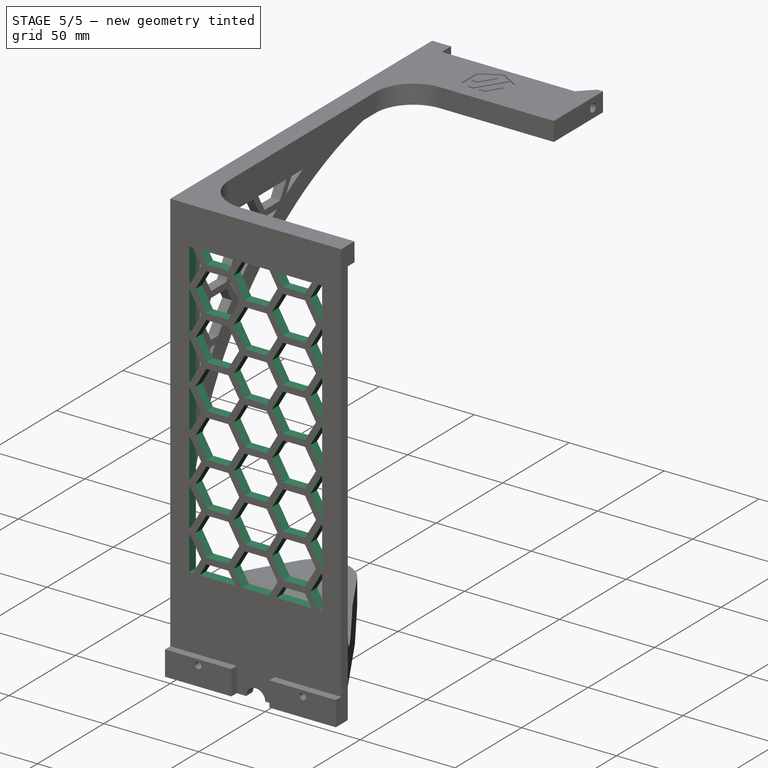
[diagram: stage 5 of 5 — iso view after this stage's code; geometry added in this stage tinted green]
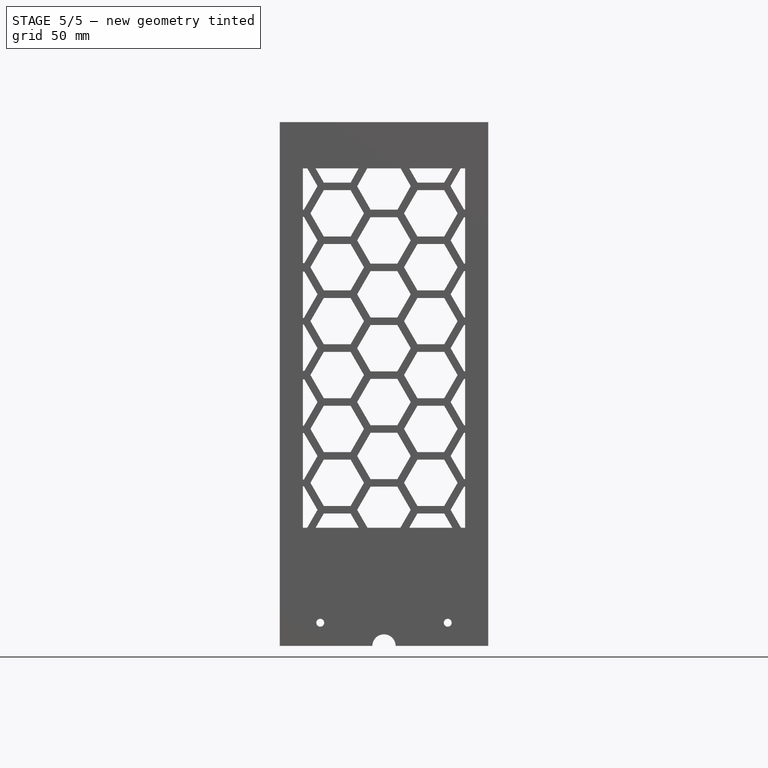
[diagram: stage 5 of 5 — front view after this stage's code; geometry added in this stage tinted green]
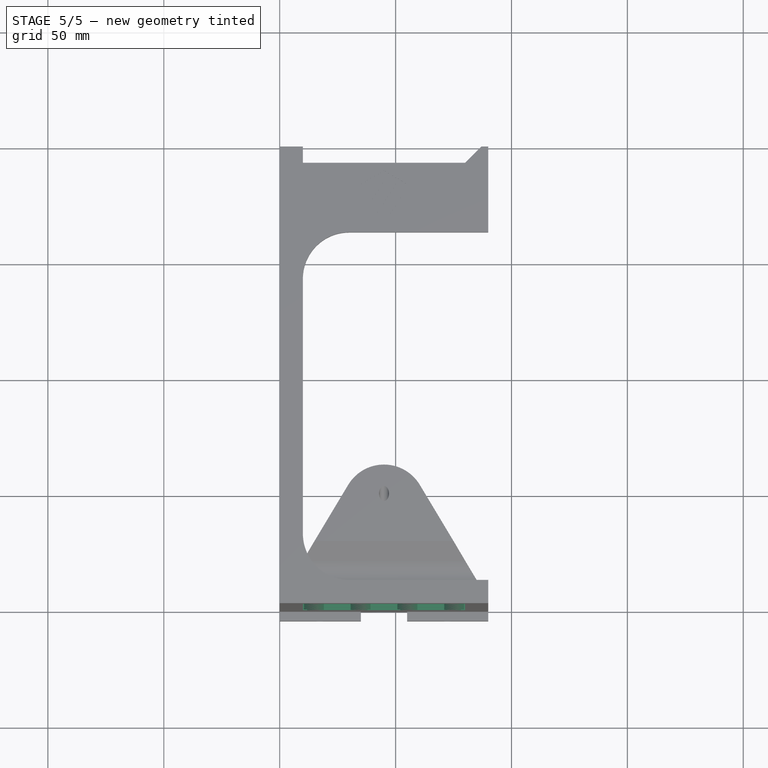
[diagram: stage 5 of 5 — top view after this stage's code; geometry added in this stage tinted green]
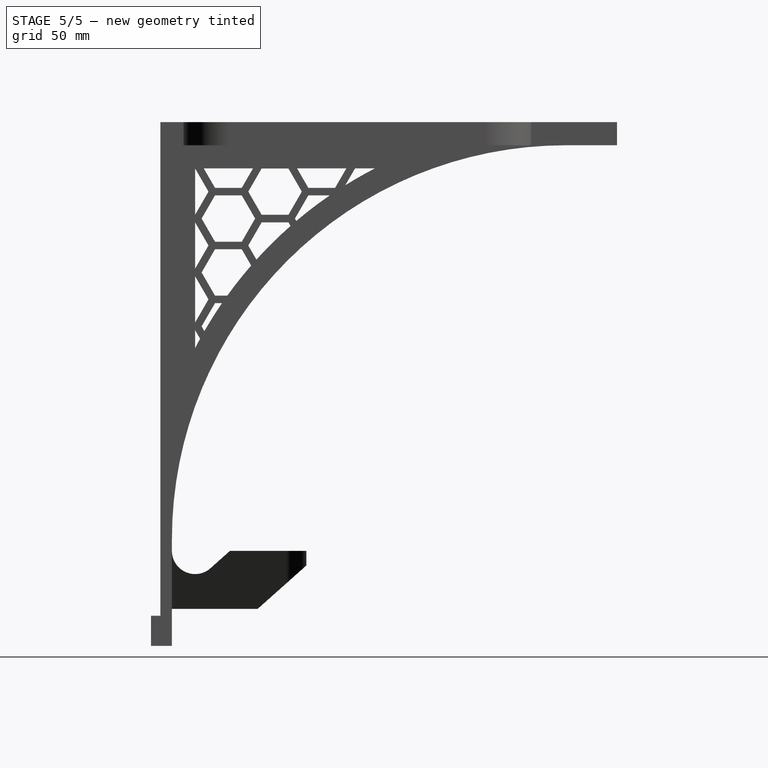
[diagram: stage 5 of 5 — right view after this stage's code; geometry added in this stage tinted green]
FEATURE [Sketcher::SketchObject] Sketch015  label="Sketch Base Hexagons"
  ArcFitTolerance = 1e-06
  AttachmentSupport = -> [Pocket007]
  ExternalGeometry = -> [Pocket007]
  FullyConstrained = true
  MakeInternals = false
  MapMode = 5
  Placement = pos=(0,5,0) rot=(0,0.707107,0.707107;3.14159rad)
  sketch-geometry (245):
    g0: LineSegment [constr] StartX=-80 StartY=-10 StartZ=0 EndX=-80 EndY=-165 EndZ=0
    g1: LineSegment [constr] StartX=-80 StartY=-165 StartZ=0 EndX=-10 EndY=-165 EndZ=0
    g2: LineSegment [constr] StartX=-10 StartY=-165 StartZ=0 EndX=-10 EndY=-10 EndZ=0
    g3: LineSegment [constr] StartX=-10 StartY=-10 StartZ=0 EndX=-80 EndY=-10 EndZ=0
    g4: LineSegment StartX=-19.0357 StartY=-16.125 StartZ=0 EndX=-15.4995 EndY=-10 EndZ=0
    g5: LineSegment StartX=-34.0127 StartY=-10 StartZ=0 EndX=-30.5828 EndY=-16.125 EndZ=0
    g6: LineSegment StartX=-30.5828 StartY=-16.125 StartZ=0 EndX=-19.0357 EndY=-16.125 EndZ=0
    g7: Circle [constr] CenterX=-24.8093 CenterY=-6.125 CenterZ=0 NormalX=0 NormalY=0 NormalZ=1 AngleXU=0 Radius=11.547
    g8: LineSegment StartX=-13.2622 StartY=-29.375 StartZ=0 EndX=-19.0357 EndY=-19.375 EndZ=0
    g9: LineSegment StartX=-19.0357 StartY=-19.375 StartZ=0 EndX=-30.5828 EndY=-19.375 EndZ=0
    g10: LineSegment StartX=-30.5828 StartY=-19.375 StartZ=0 EndX=-36.3563 EndY=-29.375 EndZ=0
    g11: LineSegment StartX=-36.3563 StartY=-29.375 StartZ=0 EndX=-30.5828 EndY=-39.375 EndZ=0
    g12: LineSegment StartX=-30.5828 StartY=-39.375 StartZ=0 EndX=-19.0357 EndY=-39.375 EndZ=0
    g13: LineSegment StartX=-19.0357 StartY=-39.375 StartZ=0 EndX=-13.2622 EndY=-29.375 EndZ=0
    g14: Circle [constr] CenterX=-24.8093 CenterY=-29.375 CenterZ=0 NormalX=0 NormalY=0 NormalZ=1 AngleXU=0 Radius=11.547
    g15: LineSegment StartX=-13.2622 StartY=-52.625 StartZ=0 EndX=-19.0357 EndY=-42.625 EndZ=0
    g16: LineSegment StartX=-19.0357 StartY=-42.625 StartZ=0 EndX=-30.5828 EndY=-42.625 EndZ=0
    g17: LineSegment StartX=-30.5828 StartY=-42.625 StartZ=0 EndX=-36.3563 EndY=-52.625 EndZ=0
    g18: LineSegment StartX=-36.3563 StartY=-52.625 StartZ=0 EndX=-30.5828 EndY=-62.625 EndZ=0
    g19: LineSegment StartX=-30.5828 StartY=-62.625 StartZ=0 EndX=-19.0357 EndY=-62.625 EndZ=0
    g20: LineSegment StartX=-19.0357 StartY=-62.625 StartZ=0 EndX=-13.2622 EndY=-52.625 EndZ=0
    g21: Circle [constr] CenterX=-24.8093 CenterY=-52.625 CenterZ=0 NormalX=0 NormalY=0 NormalZ=1 AngleXU=0 Radius=11.547
    g22: LineSegment StartX=-13.2622 StartY=-75.875 StartZ=0 EndX=-19.0357 EndY=-65.875 EndZ=0
    g23: LineSegment StartX=-19.0357 StartY=-65.875 StartZ=0 EndX=-30.5828 EndY=-65.875 EndZ=0
    g24: LineSegment StartX=-30.5828 StartY=-65.875 StartZ=0 EndX=-36.3563 EndY=-75.875 EndZ=0
    g25: LineSegment StartX=-36.3563 StartY=-75.875 StartZ=0 EndX=-30.5828 EndY=-85.875 EndZ=0
    g26: LineSegment StartX=-30.5828 StartY=-85.875 StartZ=0 EndX=-19.0357 EndY=-85.875 EndZ=0
    g27: LineSegment StartX=-19.0357 StartY=-85.875 StartZ=0 EndX=-13.2622 EndY=-75.875 EndZ=0
    g28: Circle [constr] CenterX=-24.8093 CenterY=-75.875 CenterZ=0 NormalX=0 NormalY=0 NormalZ=1 AngleXU=0 Radius=11.547
    g29: LineSegment StartX=-13.2622 StartY=-99.125 StartZ=0 EndX=-19.0357 EndY=-89.125 EndZ=0
    g30: LineSegment StartX=-19.0357 StartY=-89.125 StartZ=0 EndX=-30.5828 EndY=-89.125 EndZ=0
    g31: LineSegment StartX=-30.5828 StartY=-89.125 StartZ=0 EndX=-36.3563 EndY=-99.125 EndZ=0
    g32: LineSegment StartX=-36.3563 StartY=-99.125 StartZ=0 EndX=-30.5828 EndY=-109.125 EndZ=0
    g33: LineSegment StartX=-30.5828 StartY=-109.125 StartZ=0 EndX=-19.0357 EndY=-109.125 EndZ=0
    g34: LineSegment StartX=-19.0357 StartY=-109.125 StartZ=0 EndX=-13.2622 EndY=-99.125 EndZ=0
    g35: Circle [constr] CenterX=-24.8093 CenterY=-99.125 CenterZ=0 NormalX=0 NormalY=0 NormalZ=1 AngleXU=0 Radius=11.547
    g36: LineSegment StartX=-13.2622 StartY=-122.375 StartZ=0 EndX=-19.0357 EndY=-112.375 EndZ=0
    g37: LineSegment StartX=-19.0357 StartY=-112.375 StartZ=0 EndX=-30.5828 EndY=-112.375 EndZ=0
    g38: LineSegment StartX=-30.5828 StartY=-112.375 StartZ=0 EndX=-36.3563 EndY=-122.375 EndZ=0
    g39: LineSegment StartX=-36.3563 StartY=-122.375 StartZ=0 EndX=-30.5828 EndY=-132.375 EndZ=0
    g40: LineSegment StartX=-30.5828 StartY=-132.375 StartZ=0 EndX=-19.0357 EndY=-132.375 EndZ=0
    g41: LineSegment StartX=-19.0357 StartY=-132.375 StartZ=0 EndX=-13.2622 EndY=-122.375 EndZ=0
    g42: Circle [constr] CenterX=-24.8093 CenterY=-122.375 CenterZ=0 NormalX=0 NormalY=0 NormalZ=1 AngleXU=0 Radius=11.547
    g43: LineSegment StartX=-13.2622 StartY=-145.625 StartZ=0 EndX=-19.0357 EndY=-135.625 EndZ=0
    g44: LineSegment StartX=-19.0357 StartY=-135.625 StartZ=0 EndX=-30.5828 EndY=-135.625 EndZ=0
    g45: LineSegment StartX=-30.5828 StartY=-135.625 StartZ=0 EndX=-36.3563 EndY=-145.625 EndZ=0
    g46: LineSegment StartX=-36.3563 StartY=-145.625 StartZ=0 EndX=-30.5828 EndY=-155.625 EndZ=0
    g47: LineSegment StartX=-30.5828 StartY=-155.625 StartZ=0 EndX=-19.0357 EndY=-155.625 EndZ=0
    g48: LineSegment StartX=-19.0357 StartY=-155.625 StartZ=0 EndX=-13.2622 EndY=-145.625 EndZ=0
    g49: Circle [constr] CenterX=-24.8093 CenterY=-145.625 CenterZ=0 NormalX=0 NormalY=0 NormalZ=1 AngleXU=0 Radius=11.547
    g50: LineSegment StartX=-15.4995 StartY=-165 StartZ=0 EndX=-19.0357 EndY=-158.875 EndZ=0
    g51: LineSegment StartX=-19.0357 StartY=-158.875 StartZ=0 EndX=-30.5828 EndY=-158.875 EndZ=0
    g52: LineSegment StartX=-30.5828 StartY=-158.875 StartZ=0 EndX=-34.119 EndY=-165 EndZ=0
    g53: Circle [constr] CenterX=-24.8093 CenterY=-168.875 CenterZ=0 NormalX=0 NormalY=0 NormalZ=1 AngleXU=0 Radius=11.547
    g54: LineSegment [constr] StartX=-30.5828 StartY=-16.125 StartZ=0 EndX=-30.5828 EndY=-10 EndZ=0
    g55: LineSegment [constr] StartX=-30.5828 StartY=-158.875 StartZ=0 EndX=-30.5828 EndY=-165 EndZ=0
    g56: LineSegment StartX=-39.1997 StartY=-27.7982 StartZ=0 EndX=-33.4285 EndY=-17.6948 EndZ=0
    g57: LineSegment StartX=-33.4285 StartY=-17.6948 StartZ=0 EndX=-37.7375 EndY=-10 EndZ=0
    g58: LineSegment StartX=-52.1809 StartY=-10 StartZ=0 EndX=-56.5202 EndY=-17.5966 EndZ=0
    g59: LineSegment StartX=-56.5202 StartY=-17.5966 StartZ=0 EndX=-50.8351 EndY=-27.7487 EndZ=0
    g60: LineSegment StartX=-50.8351 StartY=-27.7487 StartZ=0 EndX=-39.1997 EndY=-27.7982 EndZ=0
    g61: Circle [constr] CenterX=-44.975 CenterY=-17.7992 CenterZ=0 NormalX=0 NormalY=0 NormalZ=1 AngleXU=0 Radius=11.547
    g62: LineSegment StartX=-79.5292 StartY=-27.7108 StartZ=0 EndX=-73.6897 EndY=-17.5966 EndZ=0
    g63: LineSegment StartX=-73.6897 StartY=-17.5966 StartZ=0 EndX=-78.0757 EndY=-10 EndZ=0
    g64: LineSegment StartX=-80 StartY=-27.7108 StartZ=0 EndX=-79.5292 EndY=-27.7108 EndZ=0
    g65: Circle [constr] CenterX=-85.2365 CenterY=-17.6729 CenterZ=0 NormalX=0 NormalY=0 NormalZ=1 AngleXU=0 Radius=11.547
    g66: LineSegment StartX=-53.649 StartY=-29.375 StartZ=0 EndX=-59.4225 EndY=-19.375 EndZ=0
    g67: LineSegment StartX=-59.4225 StartY=-19.375 StartZ=0 EndX=-70.9695 EndY=-19.375 EndZ=0
    g68: LineSegment StartX=-70.9695 StartY=-19.375 StartZ=0 EndX=-76.743 EndY=-29.375 EndZ=0
    g69: LineSegment StartX=-76.743 StartY=-29.375 StartZ=0 EndX=-70.9695 EndY=-39.375 EndZ=0
    g70: LineSegment StartX=-70.9695 StartY=-39.375 StartZ=0 EndX=-59.4225 EndY=-39.375 EndZ=0
    g71: LineSegment StartX=-59.4225 StartY=-39.375 StartZ=0 EndX=-53.649 EndY=-29.375 EndZ=0
    g72: Circle [constr] CenterX=-65.196 CenterY=-29.375 CenterZ=0 NormalX=0 NormalY=0 NormalZ=1 AngleXU=0 Radius=11.547
    g73: LineSegment StartX=-11.9243 StartY=-10 StartZ=0 EndX=-16.3103 EndY=-17.5966 EndZ=0
    g74: LineSegment StartX=-16.3103 StartY=-17.5966 StartZ=0 EndX=-10.4204 EndY=-27.7982 EndZ=0
    g75: LineSegment StartX=-10.4204 StartY=-27.7982 StartZ=0 EndX=-10 EndY=-27.7982 EndZ=0
    g76: Circle [constr] CenterX=-4.76404 CenterY=-17.7315 CenterZ=0 NormalX=0 NormalY=0 NormalZ=1 AngleXU=0 Radius=11.547
    g77: LineSegment [constr] StartX=-73.6897 StartY=-17.5966 StartZ=0 EndX=-80 EndY=-17.5966 EndZ=0
    g78: LineSegment [constr] StartX=-16.3103 StartY=-17.5966 StartZ=0 EndX=-10 EndY=-17.5966 EndZ=0
    g79: LineSegment StartX=-74.5057 StartY=-10 StartZ=0 EndX=-70.9695 EndY=-16.125 EndZ=0
    g80: LineSegment StartX=-70.9695 StartY=-16.125 StartZ=0 EndX=-59.4225 EndY=-16.125 EndZ=0
    g81: LineSegment StartX=-59.4225 StartY=-16.125 StartZ=0 EndX=-55.9237 EndY=-10 EndZ=0
    g82: Circle [constr] CenterX=-65.196 CenterY=-6.125 CenterZ=0 NormalX=0 NormalY=0 NormalZ=1 AngleXU=0 Radius=11.547
    g83: LineSegment StartX=-33.4262 StartY=-41.0482 StartZ=0 EndX=-39.1997 EndY=-31.0482 EndZ=0
    g84: LineSegment StartX=-39.1997 StartY=-31.0482 StartZ=0 EndX=-50.7467 EndY=-31.0482 EndZ=0
    g85: LineSegment StartX=-50.7467 StartY=-31.0482 StartZ=0 EndX=-56.5202 EndY=-41.0482 EndZ=0
    g86: LineSegment StartX=-56.5202 StartY=-41.0482 StartZ=0 EndX=-50.7467 EndY=-51.0482 EndZ=0
    g87: LineSegment StartX=-50.7467 StartY=-51.0482 StartZ=0 EndX=-39.1997 EndY=-51.0482 EndZ=0
    g88: LineSegment StartX=-39.1997 StartY=-51.0482 StartZ=0 EndX=-33.4262 EndY=-41.0482 EndZ=0
    g89: Circle [constr] CenterX=-44.9732 CenterY=-41.0482 CenterZ=0 NormalX=0 NormalY=0 NormalZ=1 AngleXU=0 Radius=11.547
    g90: LineSegment StartX=-33.4262 StartY=-64.2982 StartZ=0 EndX=-39.1997 EndY=-54.2982 EndZ=0
    g91: LineSegment StartX=-39.1997 StartY=-54.2982 StartZ=0 EndX=-50.7467 EndY=-54.2982 EndZ=0
    g92: LineSegment StartX=-50.7467 StartY=-54.2982 StartZ=0 EndX=-56.5202 EndY=-64.2982 EndZ=0
    g93: LineSegment StartX=-56.5202 StartY=-64.2982 StartZ=0 EndX=-50.7467 EndY=-74.2982 EndZ=0
    g94: LineSegment StartX=-50.7467 StartY=-74.2982 StartZ=0 EndX=-39.1997 EndY=-74.2982 EndZ=0
    g95: LineSegment StartX=-39.1997 StartY=-74.2982 StartZ=0 EndX=-33.4262 EndY=-64.2982 EndZ=0
    g96: Circle [constr] CenterX=-44.9732 CenterY=-64.2982 CenterZ=0 NormalX=0 NormalY=0 NormalZ=1 AngleXU=0 Radius=11.547
    g97: LineSegment StartX=-33.4262 StartY=-87.5482 StartZ=0 EndX=-39.1997 EndY=-77.5482 EndZ=0
    g98: LineSegment StartX=-39.1997 StartY=-77.5482 StartZ=0 EndX=-50.7467 EndY=-77.5482 EndZ=0
    g99: LineSegment StartX=-50.7467 StartY=-77.5482 StartZ=0 EndX=-56.5202 EndY=-87.5482 EndZ=0
    g100: LineSegment StartX=-56.5202 StartY=-87.5482 StartZ=0 EndX=-50.7467 EndY=-97.5482 EndZ=0
    g101: LineSegment StartX=-50.7467 StartY=-97.5482 StartZ=0 EndX=-39.1997 EndY=-97.5482 EndZ=0
    g102: LineSegment StartX=-39.1997 StartY=-97.5482 StartZ=0 EndX=-33.4262 EndY=-87.5482 EndZ=0
    g103: Circle [constr] CenterX=-44.9732 CenterY=-87.5482 CenterZ=0 NormalX=0 NormalY=0 NormalZ=1 AngleXU=0 Radius=11.547
    g104: LineSegment StartX=-33.4262 StartY=-110.798 StartZ=0 EndX=-39.1997 EndY=-100.798 EndZ=0
    g105: LineSegment StartX=-39.1997 StartY=-100.798 StartZ=0 EndX=-50.7467 EndY=-100.798 EndZ=0
    g106: LineSegment StartX=-50.7467 StartY=-100.798 StartZ=0 EndX=-56.5202 EndY=-110.798 EndZ=0
    g107: LineSegment StartX=-56.5202 StartY=-110.798 StartZ=0 EndX=-50.7467 EndY=-120.798 EndZ=0
    g108: LineSegment StartX=-50.7467 StartY=-120.798 StartZ=0 EndX=-39.1997 EndY=-120.798 EndZ=0
    g109: LineSegment StartX=-39.1997 StartY=-120.798 StartZ=0 EndX=-33.4262 EndY=-110.798 EndZ=0
    g110: Circle [constr] CenterX=-44.9732 CenterY=-110.798 CenterZ=0 NormalX=0 NormalY=0 NormalZ=1 AngleXU=0 Radius=11.547
    g111: LineSegment StartX=-33.4262 StartY=-134.048 StartZ=0 EndX=-39.1997 EndY=-124.048 EndZ=0
    g112: LineSegment StartX=-39.1997 StartY=-124.048 StartZ=0 EndX=-50.7467 EndY=-124.048 EndZ=0
    g113: LineSegment StartX=-50.7467 StartY=-124.048 StartZ=0 EndX=-56.5202 EndY=-134.048 EndZ=0
    g114: LineSegment StartX=-56.5202 StartY=-134.048 StartZ=0 EndX=-50.7467 EndY=-144.048 EndZ=0
    g115: LineSegment StartX=-50.7467 StartY=-144.048 StartZ=0 EndX=-39.1997 EndY=-144.048 EndZ=0
    g116: LineSegment StartX=-39.1997 StartY=-144.048 StartZ=0 EndX=-33.4262 EndY=-134.048 EndZ=0
    g117: Circle [constr] CenterX=-44.9732 CenterY=-134.048 CenterZ=0 NormalX=0 NormalY=0 NormalZ=1 AngleXU=0 Radius=11.547
    g118: LineSegment StartX=-33.4262 StartY=-157.298 StartZ=0 EndX=-39.1997 EndY=-147.298 EndZ=0
    g119: LineSegment StartX=-39.1997 StartY=-147.298 StartZ=0 EndX=-50.7467 EndY=-147.298 EndZ=0
    g120: LineSegment StartX=-50.7467 StartY=-147.298 StartZ=0 EndX=-56.5202 EndY=-157.298 EndZ=0
    g121: LineSegment StartX=-56.5202 StartY=-157.298 StartZ=0 EndX=-52.0736 EndY=-165 EndZ=0
    g122: LineSegment StartX=-37.8729 StartY=-165 StartZ=0 EndX=-33.4262 EndY=-157.298 EndZ=0
    g123: Circle [constr] CenterX=-44.9732 CenterY=-157.298 CenterZ=0 NormalX=0 NormalY=0 NormalZ=1 AngleXU=0 Radius=11.547
    g124: LineSegment StartX=-53.649 StartY=-52.625 StartZ=0 EndX=-59.4225 EndY=-42.625 EndZ=0
    g125: LineSegment StartX=-59.4225 StartY=-42.625 StartZ=0 EndX=-70.9695 EndY=-42.625 EndZ=0
    g126: LineSegment StartX=-70.9695 StartY=-42.625 StartZ=0 EndX=-76.743 EndY=-52.625 EndZ=0
    g127: LineSegment StartX=-76.743 StartY=-52.625 StartZ=0 EndX=-70.9695 EndY=-62.625 EndZ=0
    g128: LineSegment StartX=-70.9695 StartY=-62.625 StartZ=0 EndX=-59.4225 EndY=-62.625 EndZ=0
    g129: LineSegment StartX=-59.4225 StartY=-62.625 StartZ=0 EndX=-53.649 EndY=-52.625 EndZ=0
    g130: Circle [constr] CenterX=-65.196 CenterY=-52.625 CenterZ=0 NormalX=0 NormalY=0 NormalZ=1 AngleXU=0 Radius=11.547
    g131: LineSegment StartX=-53.649 StartY=-75.875 StartZ=0 EndX=-59.4225 EndY=-65.875 EndZ=0
    g132: LineSegment StartX=-59.4225 StartY=-65.875 StartZ=0 EndX=-70.9695 EndY=-65.875 EndZ=0
    g133: LineSegment StartX=-70.9695 StartY=-65.875 StartZ=0 EndX=-76.743 EndY=-75.875 EndZ=0
    g134: LineSegment StartX=-76.743 StartY=-75.875 StartZ=0 EndX=-70.9695 EndY=-85.875 EndZ=0
    g135: LineSegment StartX=-70.9695 StartY=-85.875 StartZ=0 EndX=-59.4225 EndY=-85.875 EndZ=0
    g136: LineSegment StartX=-59.4225 StartY=-85.875 StartZ=0 EndX=-53.649 EndY=-75.875 EndZ=0
    g137: Circle [constr] CenterX=-65.196 CenterY=-75.875 CenterZ=0 NormalX=0 NormalY=0 NormalZ=1 AngleXU=0 Radius=11.547
    g138: LineSegment StartX=-53.649 StartY=-99.125 StartZ=0 EndX=-59.4225 EndY=-89.125 EndZ=0
    g139: LineSegment StartX=-59.4225 StartY=-89.125 StartZ=0 EndX=-70.9695 EndY=-89.125 EndZ=0
    g140: LineSegment StartX=-70.9695 StartY=-89.125 StartZ=0 EndX=-76.743 EndY=-99.125 EndZ=0
    g141: LineSegment StartX=-76.743 StartY=-99.125 StartZ=0 EndX=-70.9695 EndY=-109.125 EndZ=0
    g142: LineSegment StartX=-70.9695 StartY=-109.125 StartZ=0 EndX=-59.4225 EndY=-109.125 EndZ=0
    g143: LineSegment StartX=-59.4225 StartY=-109.125 StartZ=0 EndX=-53.649 EndY=-99.125 EndZ=0
    g144: Circle [constr] CenterX=-65.196 CenterY=-99.125 CenterZ=0 NormalX=0 NormalY=0 NormalZ=1 AngleXU=0 Radius=11.547
    g145: LineSegment StartX=-59.4225 StartY=-132.375 StartZ=0 EndX=-53.649 EndY=-122.375 EndZ=0
    g146: LineSegment StartX=-53.649 StartY=-122.375 StartZ=0 EndX=-59.4225 EndY=-112.375 EndZ=0
    g147: LineSegment StartX=-59.4225 StartY=-112.375 StartZ=0 EndX=-70.9695 EndY=-112.375 EndZ=0
    g148: LineSegment StartX=-70.9695 StartY=-112.375 StartZ=0 EndX=-76.743 EndY=-122.375 EndZ=0
    g149: LineSegment StartX=-76.743 StartY=-122.375 StartZ=0 EndX=-70.9695 EndY=-132.375 EndZ=0
    g150: LineSegment StartX=-70.9695 StartY=-132.375 StartZ=0 EndX=-59.4225 EndY=-132.375 EndZ=0
    g151: Circle [constr] CenterX=-65.196 CenterY=-122.375 CenterZ=0 NormalX=0 NormalY=0 NormalZ=1 AngleXU=0 Radius=11.547
    g152: LineSegment StartX=-53.649 StartY=-145.625 StartZ=0 EndX=-59.4225 EndY=-135.625 EndZ=0
    g153: LineSegment StartX=-59.4225 StartY=-135.625 StartZ=0 EndX=-70.9695 EndY=-135.625 EndZ=0
    g154: LineSegment StartX=-70.9695 StartY=-135.625 StartZ=0 EndX=-76.743 EndY=-145.625 EndZ=0
    g155: LineSegment StartX=-76.743 StartY=-145.625 StartZ=0 EndX=-70.9695 EndY=-155.625 EndZ=0
    g156: LineSegment StartX=-70.9695 StartY=-155.625 StartZ=0 EndX=-59.4225 EndY=-155.625 EndZ=0
    g157: LineSegment StartX=-59.4225 StartY=-155.625 StartZ=0 EndX=-53.649 EndY=-145.625 EndZ=0
    g158: Circle [constr] CenterX=-65.196 CenterY=-145.625 CenterZ=0 NormalX=0 NormalY=0 NormalZ=1 AngleXU=0 Radius=11.547
    g159: LineSegment StartX=-55.8862 StartY=-165 StartZ=0 EndX=-59.4225 EndY=-158.875 EndZ=0
    g160: LineSegment StartX=-59.4225 StartY=-158.875 StartZ=0 EndX=-70.9695 EndY=-158.875 EndZ=0
    g161: LineSegment StartX=-70.9695 StartY=-158.875 StartZ=0 EndX=-74.5057 EndY=-165 EndZ=0
    g162: Circle [constr] CenterX=-65.196 CenterY=-168.875 CenterZ=0 NormalX=0 NormalY=0 NormalZ=1 AngleXU=0 Radius=11.547
    g163: LineSegment StartX=-73.7557 StartY=-41.0482 StartZ=0 EndX=-79.5292 EndY=-31.0482 EndZ=0
    g164: LineSegment StartX=-79.5292 StartY=-31.0482 StartZ=0 EndX=-80 EndY=-31.0482 EndZ=0
    g165: LineSegment StartX=-80 StartY=-51.0482 StartZ=0 EndX=-79.5292 EndY=-51.0482 EndZ=0
    g166: LineSegment StartX=-79.5292 StartY=-51.0482 StartZ=0 EndX=-73.7557 EndY=-41.0482 EndZ=0
    g167: Circle [constr] CenterX=-85.3027 CenterY=-41.0482 CenterZ=0 NormalX=0 NormalY=0 NormalZ=1 AngleXU=0 Radius=11.547
    g168: LineSegment StartX=-73.7557 StartY=-64.2982 StartZ=0 EndX=-79.5292 EndY=-54.2982 EndZ=0
    g169: LineSegment StartX=-79.5292 StartY=-54.2982 StartZ=0 EndX=-80 EndY=-54.2982 EndZ=0
    g170: LineSegment StartX=-80 StartY=-74.2982 StartZ=0 EndX=-79.5292 EndY=-74.2982 EndZ=0
    g171: LineSegment StartX=-79.5292 StartY=-74.2982 StartZ=0 EndX=-73.7557 EndY=-64.2982 EndZ=0
    g172: Circle [constr] CenterX=-85.3027 CenterY=-64.2982 CenterZ=0 NormalX=0 NormalY=0 NormalZ=1 AngleXU=0 Radius=11.547
    g173: LineSegment StartX=-73.7557 StartY=-87.5482 StartZ=0 EndX=-79.5292 EndY=-77.5482 EndZ=0
    g174: LineSegment StartX=-79.5292 StartY=-77.5482 StartZ=0 EndX=-80 EndY=-77.5482 EndZ=0
    g175: LineSegment StartX=-80 StartY=-97.5482 StartZ=0 EndX=-79.5292 EndY=-97.5482 EndZ=0
    g176: LineSegment StartX=-79.5292 StartY=-97.5482 StartZ=0 EndX=-73.7557 EndY=-87.5482 EndZ=0
    g177: Circle [constr] CenterX=-85.3027 CenterY=-87.5482 CenterZ=0 NormalX=0 NormalY=0 NormalZ=1 AngleXU=0 Radius=11.547
    g178: LineSegment StartX=-73.7557 StartY=-110.798 StartZ=0 EndX=-79.5292 EndY=-100.798 EndZ=0
    g179: LineSegment StartX=-79.5292 StartY=-100.798 StartZ=0 EndX=-80 EndY=-100.798 EndZ=0
    g180: LineSegment StartX=-80 StartY=-120.798 StartZ=0 EndX=-79.5292 EndY=-120.798 EndZ=0
    g181: LineSegment StartX=-79.5292 StartY=-120.798 StartZ=0 EndX=-73.7557 EndY=-110.798 EndZ=0
    g182: Circle [constr] CenterX=-85.3027 CenterY=-110.798 CenterZ=0 NormalX=0 NormalY=0 NormalZ=1 AngleXU=0 Radius=11.547
    g183: LineSegment StartX=-73.7557 StartY=-134.048 StartZ=0 EndX=-79.5292 EndY=-124.048 EndZ=0
    g184: LineSegment StartX=-79.5292 StartY=-124.048 StartZ=0 EndX=-80 EndY=-124.048 EndZ=0
    g185: LineSegment StartX=-80 StartY=-144.048 StartZ=0 EndX=-79.5292 EndY=-144.048 EndZ=0
    g186: LineSegment StartX=-79.5292 StartY=-144.048 StartZ=0 EndX=-73.7557 EndY=-134.048 EndZ=0
    g187: Circle [constr] CenterX=-85.3027 CenterY=-134.048 CenterZ=0 NormalX=0 NormalY=0 NormalZ=1 AngleXU=0 Radius=11.547
    g188: LineSegment StartX=-73.7557 StartY=-157.298 StartZ=0 EndX=-79.5292 EndY=-147.298 EndZ=0
    g189: LineSegment StartX=-79.5292 StartY=-147.298 StartZ=0 EndX=-80 EndY=-147.298 EndZ=0
    g190: LineSegment StartX=-78.2023 StartY=-165 StartZ=0 EndX=-73.7557 EndY=-157.298 EndZ=0
    g191: Circle [constr] CenterX=-85.3027 CenterY=-157.298 CenterZ=0 NormalX=0 NormalY=0 NormalZ=1 AngleXU=0 Radius=11.547
    g192: LineSegment StartX=-10 StartY=-30.8466 StartZ=0 EndX=-10.4204 EndY=-30.8466 EndZ=0
    g193: LineSegment StartX=-10.4204 StartY=-30.8466 StartZ=0 EndX=-16.3103 EndY=-41.0482 EndZ=0
    g194: LineSegment StartX=-16.3103 StartY=-41.0482 StartZ=0 EndX=-10.6539 EndY=-50.8453 EndZ=0
    g195: LineSegment StartX=-10.6539 StartY=-50.8453 StartZ=0 EndX=-10 EndY=-50.8453 EndZ=0
    g196: Circle [constr] CenterX=-4.76404 CenterY=-40.9134 CenterZ=0 NormalX=0 NormalY=0 NormalZ=1 AngleXU=0 Radius=11.547
    g197: LineSegment StartX=-10 StartY=-54.5011 StartZ=0 EndX=-10.6539 EndY=-54.5011 EndZ=0
    g198: LineSegment StartX=-10.6539 StartY=-54.5011 StartZ=0 EndX=-16.3103 EndY=-64.2982 EndZ=0
    g199: LineSegment StartX=-16.3103 StartY=-64.2982 StartZ=0 EndX=-10.4204 EndY=-74.4997 EndZ=0
    g200: LineSegment StartX=-10.4204 StartY=-74.4997 StartZ=0 EndX=-10 EndY=-74.4997 EndZ=0
    g201: Circle [constr] CenterX=-4.76404 CenterY=-64.433 CenterZ=0 NormalX=0 NormalY=0 NormalZ=1 AngleXU=0 Radius=11.547
    g202: LineSegment StartX=-10 StartY=-77.3466 StartZ=0 EndX=-10.4204 EndY=-77.3466 EndZ=0
    g203: LineSegment StartX=-10.4204 StartY=-77.3466 StartZ=0 EndX=-16.3103 EndY=-87.5482 EndZ=0
    g204: LineSegment StartX=-16.3103 StartY=-87.5482 StartZ=0 EndX=-10.6539 EndY=-97.3453 EndZ=0
    g205: LineSegment StartX=-10.6539 StartY=-97.3453 StartZ=0 EndX=-10 EndY=-97.3453 EndZ=0
    g206: Circle [constr] CenterX=-4.76404 CenterY=-87.4134 CenterZ=0 NormalX=0 NormalY=0 NormalZ=1 AngleXU=0 Radius=11.547
    g207: LineSegment StartX=-10 StartY=-101.001 StartZ=0 EndX=-10.6539 EndY=-101.001 EndZ=0
    g208: LineSegment StartX=-10.6539 StartY=-101.001 StartZ=0 EndX=-16.3103 EndY=-110.798 EndZ=0
    g209: LineSegment StartX=-16.3103 StartY=-110.798 StartZ=0 EndX=-10.4204 EndY=-121 EndZ=0
    g210: LineSegment StartX=-10.4204 StartY=-121 StartZ=0 EndX=-10 EndY=-121 EndZ=0
    g211: Circle [constr] CenterX=-4.76404 CenterY=-110.933 CenterZ=0 NormalX=0 NormalY=0 NormalZ=1 AngleXU=0 Radius=11.547
    g212: LineSegment StartX=-10 StartY=-124.116 StartZ=0 EndX=-10.4204 EndY=-124.116 EndZ=0
    g213: LineSegment StartX=-10.4204 StartY=-124.116 StartZ=0 EndX=-16.3103 EndY=-134.048 EndZ=0
    g214: LineSegment StartX=-16.3103 StartY=-134.048 StartZ=0 EndX=-10.4204 EndY=-144.25 EndZ=0
    g215: LineSegment StartX=-10.4204 StartY=-144.25 StartZ=0 EndX=-10 EndY=-144.25 EndZ=0
    g216: Circle [constr] CenterX=-4.76404 CenterY=-134.183 CenterZ=0 NormalX=0 NormalY=0 NormalZ=1 AngleXU=0 Radius=11.547
    g217: LineSegment StartX=-10 StartY=-147.097 StartZ=0 EndX=-10.4204 EndY=-147.097 EndZ=0
    g218: LineSegment StartX=-10.4204 StartY=-147.097 StartZ=0 EndX=-16.3103 EndY=-157.298 EndZ=0
    g219: LineSegment StartX=-16.3103 StartY=-157.298 StartZ=0 EndX=-11.8636 EndY=-165 EndZ=0
    g220: Circle [constr] CenterX=-4.76404 CenterY=-157.163 CenterZ=0 NormalX=0 NormalY=0 NormalZ=1 AngleXU=0 Radius=11.547
    g221: LineSegment StartX=-34.0127 StartY=-10 StartZ=0 EndX=-15.4995 EndY=-10 EndZ=0
    g222: LineSegment StartX=-74.5057 StartY=-10 StartZ=0 EndX=-55.9237 EndY=-10 EndZ=0
    g223: LineSegment StartX=-52.1809 StartY=-10 StartZ=0 EndX=-37.7375 EndY=-10 EndZ=0
    g224: LineSegment StartX=-80 StartY=-27.7108 StartZ=0 EndX=-80 EndY=-10 EndZ=0
    g225: LineSegment StartX=-80 StartY=-10 StartZ=0 EndX=-78.0757 EndY=-10 EndZ=0
    g226: LineSegment StartX=-80 StartY=-31.0482 StartZ=0 EndX=-80 EndY=-51.0482 EndZ=0
    g227: LineSegment StartX=-80 StartY=-54.2982 StartZ=0 EndX=-80 EndY=-74.2982 EndZ=0
    g228: LineSegment StartX=-80 StartY=-77.5482 StartZ=0 EndX=-80 EndY=-97.5482 EndZ=0
    g229: LineSegment StartX=-80 StartY=-100.798 StartZ=0 EndX=-80 EndY=-120.798 EndZ=0
    g230: LineSegment StartX=-80 StartY=-124.048 StartZ=0 EndX=-80 EndY=-144.048 EndZ=0
    g231: LineSegment StartX=-80 StartY=-147.298 StartZ=0 EndX=-80 EndY=-165 EndZ=0
    g232: LineSegment StartX=-80 StartY=-165 StartZ=0 EndX=-78.2023 EndY=-165 EndZ=0
    g233: LineSegment StartX=-74.5057 StartY=-165 StartZ=0 EndX=-55.8862 EndY=-165 EndZ=0
    g234: LineSegment StartX=-52.0736 StartY=-165 StartZ=0 EndX=-37.8729 EndY=-165 EndZ=0
    g235: LineSegment StartX=-34.119 StartY=-165 StartZ=0 EndX=-15.4995 EndY=-165 EndZ=0
    g236: LineSegment StartX=-11.8636 StartY=-165 StartZ=0 EndX=-10 EndY=-165 EndZ=0
    g237: LineSegment StartX=-10 StartY=-165 StartZ=0 EndX=-10 EndY=-147.097 EndZ=0
    g238: LineSegment StartX=-10 StartY=-144.25 StartZ=0 EndX=-10 EndY=-124.116 EndZ=0
    g239: LineSegment StartX=-10 StartY=-101.001 StartZ=0 EndX=-10 EndY=-121 EndZ=0
    g240: LineSegment StartX=-10 StartY=-77.3466 StartZ=0 EndX=-10 EndY=-97.3453 EndZ=0
    g241: LineSegment StartX=-10 StartY=-54.5011 StartZ=0 EndX=-10 EndY=-74.4997 EndZ=0
    g242: LineSegment StartX=-10 StartY=-30.8466 StartZ=0 EndX=-10 EndY=-50.8453 EndZ=0
    g243: LineSegment StartX=-11.9243 StartY=-10 StartZ=0 EndX=-10 EndY=-10 EndZ=0
    g244: LineSegment StartX=-10 StartY=-10 StartZ=0 EndX=-10 EndY=-27.7982 EndZ=0
  constraints (663):
    c: Coincident(g0,g1)
    c: Coincident(g1,g2)
    c: Coincident(g2,g3)
    c: Coincident(g3,g0)
    c: Vertical(g0)
    c: Vertical(g2)
    c: Horizontal(g1)
    c: Horizontal(g3)
    c: DistanceY(g2,g-4) = 10
    c: DistanceX(g2,g-4) = 5
    c: DistanceY(g-3,g0) = 10
    c: DistanceX(g-3,g0) = 10
    c: Coincident(g5,g6)
    c: Coincident(g6,g4)
    c: PointOnObject(g5,g7)
    c: PointOnObject(g6,g7)
    c: Coincident(g8,g9)
    c: Coincident(g9,g10)
    c: Coincident(g10,g11)
    c: Coincident(g11,g12)
    c: Coincident(g12,g13)
    c: Coincident(g13,g8)
    c: Equal(g8, g9-g13) x5
    c: PointOnObject(g8,g14)
    c: PointOnObject(g9,g14)
    c: PointOnObject(g10,g14)
    c: PointOnObject(g11,g14)
    c: PointOnObject(g12,g14)
    c: PointOnObject(g13,g14)
    c: Horizontal(g9)
    c: DistanceY(g9,g5) = 3.25
    c: Coincident(g16,g17)
    c: Coincident(g17,g18)
    c: Coincident(g18,g19)
    c: Coincident(g19,g20)
    c: Coincident(g20,g15)
    c: Equal(g15, g16-g20) x5
    c: PointOnObject(g15,g21)
    c: PointOnObject(g16,g21)
    c: PointOnObject(g17,g21)
    c: PointOnObject(g18,g21)
    c: PointOnObject(g19,g21)
    c: PointOnObject(g20,g21)
    c: Horizontal(g16)
    c: Vertical(g11,g16)
    c: Distance(g11,g16) = 3.25
    c: Vertical(g9,g5)
    c: Coincident(g22,g23)
    c: Coincident(g23,g24)
    c: Coincident(g24,g25)
    c: Coincident(g25,g26)
    c: Coincident(g26,g27)
    c: Coincident(g27,g22)
    c: Equal(g22, g23-g27) x5
    c: PointOnObject(g22,g28)
    c: PointOnObject(g23,g28)
    c: PointOnObject(g24,g28)
    c: PointOnObject(g25,g28)
    c: PointOnObject(g26,g28)
    c: PointOnObject(g27,g28)
    c: Horizontal(g23)
    c: Vertical(g23,g18)
    c: Distance(g23,g18) = 3.25
    c: Coincident(g29,g30)
    c: Coincident(g30,g31)
    c: Coincident(g32,g33)
    c: Coincident(g33,g34)
    c: Coincident(g34,g29)
    c: Equal(g29, g30-g34) x5
    c: PointOnObject(g29,g35)
    c: PointOnObject(g30,g35)
    c: PointOnObject(g31,g35)
    c: PointOnObject(g32,g35)
    c: PointOnObject(g33,g35)
    c: PointOnObject(g34,g35)
    c: Horizontal(g30)
    c: Vertical(g30,g25)
    c: Distance(g30,g25) = 3.25
    c: Coincident(g36,g37)
    c: Coincident(g37,g38)
    c: Coincident(g38,g39)
    c: Coincident(g39,g40)
    c: Coincident(g40,g41)
    c: Coincident(g41,g36)
    c: Equal(g36, g37-g41) x5
    c: PointOnObject(g36,g42)
    c: PointOnObject(g37,g42)
    c: PointOnObject(g38,g42)
    c: PointOnObject(g39,g42)
    c: PointOnObject(g40,g42)
    c: PointOnObject(g41,g42)
    c: Horizontal(g37)
    c: Vertical(g37,g32)
    c: Distance(g37,g32) = 3.25
    c: Coincident(g43,g44)
    c: Coincident(g44,g45)
    c: Coincident(g45,g46)
    c: Coincident(g46,g47)
    c: Coincident(g47,g48)
    c: Coincident(g48,g43)
    c: Equal(g43, g44-g48) x5
    c: PointOnObject(g43,g49)
    c: PointOnObject(g44,g49)
    c: PointOnObject(g45,g49)
    c: PointOnObject(g46,g49)
    c: PointOnObject(g47,g49)
    c: PointOnObject(g48,g49)
    c: Horizontal(g44)
    c: Vertical(g44,g39)
    c: Distance(g44,g39) = 3.25
    c: Coincident(g32,g31)
    c: Coincident(g15,g16)
    c: Coincident(g50,g51)
    c: Coincident(g51,g52)
    c: PointOnObject(g50,g53)
    c: PointOnObject(g51,g53)
    c: Horizontal(g51)
    c: Vertical(g51,g46)
    c: Distance(g51,g46) = 3.25
    c: Coincident(g54,g5)
    c: PointOnObject(g54,g3)
    c: Vertical(g54)
    c: Coincident(g55,g51)
    c: PointOnObject(g55,g1)
    c: Vertical(g55)
    c: Equal(g55,g54)
    c: Coincident(g56,g57)
    c: Coincident(g58,g59)
    c: Coincident(g59,g60)
    c: Coincident(g60,g56)
    c: Equal(g56,g59)
    c: Equal(g56,g60)
    c: PointOnObject(g56,g61)
    c: PointOnObject(g58,g61)
    c: PointOnObject(g59,g61)
    c: PointOnObject(g60,g61)
    c: Distance(g56,g5) = 3.25
    c: Coincident(g62,g63)
    c: Coincident(g64,g62)
    c: PointOnObject(g62,g65)
    c: PointOnObject(g64,g65)
    c: Horizontal(g62,g58)
    c: Coincident(g66,g67)
    c: Coincident(g67,g68)
    c: Coincident(g68,g69)
    c: Coincident(g69,g70)
    c: Coincident(g70,g71)
    c: Coincident(g71,g66)
    c: Equal(g66, g67-g71) x5
    c: PointOnObject(g66,g72)
    c: PointOnObject(g67,g72)
    c: PointOnObject(g68,g72)
    c: PointOnObject(g69,g72)
    c: PointOnObject(g70,g72)
    c: PointOnObject(g71,g72)
    c: Horizontal(g67)
    c: Horizontal(g66,g10)
    c: Distance(g66,g59) = 3.25
    c: Distance(g62,g67) = 3.25
    c: Coincident(g73,g74)
    c: Coincident(g74,g75)
    c: PointOnObject(g73,g76)
    c: PointOnObject(g74,g76)
    c: Equal(g7,g61)
    c: Equal(g61,g72)
    c: Equal(g72,g65)
    c: Equal(g65,g14)
    c: Equal(g14,g21)
    c: Equal(g21,g28)
    c: Equal(g28,g35)
    c: Equal(g35,g42)
    c: Equal(g42,g49)
    c: Equal(g49,g53)
    c: Equal(g53,g76)
    c: Distance(g17,g15) = 20
    c: Distance(g8,g74) = 3.25
    c: Coincident(g77,g62)
    c: PointOnObject(g77,g0)
    c: Horizontal(g77)
    c: Coincident(g78,g73)
    c: PointOnObject(g78,g2)
    c: Horizontal(g78)
    c: Equal(g78,g77)
    c: Horizontal(g58,g73)
    c: Coincident(g79,g80)
    c: Coincident(g80,g81)
    c: PointOnObject(g79,g82)
    c: PointOnObject(g80,g82)
    c: Equal(g72,g82)
    c: Horizontal(g80,g5)
    c: Vertical(g79,g67)
    c: Coincident(g83,g84)
    c: Coincident(g84,g85)
    c: Coincident(g85,g86)
    c: Coincident(g86,g87)
    c: Coincident(g87,g88)
    c: Coincident(g88,g83)
    c: Equal(g83, g84-g88) x5
    c: PointOnObject(g83,g89)
    c: PointOnObject(g84,g89)
    c: PointOnObject(g85,g89)
    c: PointOnObject(g86,g89)
    c: PointOnObject(g87,g89)
    c: PointOnObject(g88,g89)
    c: Equal(g89,g72)
    c: Horizontal(g84)
    c: Vertical(g83,g56)
    c: Distance(g70,g85) = 3.35
    c: Coincident(g90,g91)
    c: Coincident(g91,g92)
    c: Coincident(g92,g93)
    c: Coincident(g93,g94)
    c: Coincident(g94,g95)
    c: Coincident(g95,g90)
    c: Equal(g90, g91-g95) x5
    c: PointOnObject(g90,g96)
    c: PointOnObject(g91,g96)
    c: PointOnObject(g92,g96)
    c: PointOnObject(g93,g96)
    c: PointOnObject(g94,g96)
    c: PointOnObject(g95,g96)
    c: Horizontal(g91)
    c: Equal(g96,g89)
    c: Vertical(g90,g87)
    c: DistanceY(g91,g86) = 3.25
    c: Coincident(g97,g98)
    c: Coincident(g98,g99)
    c: Coincident(g99,g100)
    c: Coincident(g100,g101)
    c: Coincident(g101,g102)
    c: Coincident(g102,g97)
    c: Equal(g97, g98-g102) x5
    c: PointOnObject(g97,g103)
    c: PointOnObject(g98,g103)
    c: PointOnObject(g99,g103)
    c: PointOnObject(g100,g103)
    c: PointOnObject(g101,g103)
    c: PointOnObject(g102,g103)
    c: Horizontal(g98)
    c: Equal(g103,g96)
    c: Vertical(g98,g93)
    c: DistanceY(g98,g93) = 3.25
    c: Coincident(g104,g105)
    c: Coincident(g105,g106)
    c: Coincident(g106,g107)
    c: Coincident(g107,g108)
    c: Coincident(g108,g109)
    c: Coincident(g109,g104)
    c: Equal(g104, g105-g109) x5
    c: PointOnObject(g104,g110)
    c: PointOnObject(g105,g110)
    c: PointOnObject(g106,g110)
    c: PointOnObject(g107,g110)
    c: PointOnObject(g108,g110)
    c: PointOnObject(g109,g110)
    c: Horizontal(g105)
    c: Equal(g110,g103)
    c: Vertical(g105,g100)
    c: DistanceY(g105,g100) = 3.25
    c: Coincident(g111,g112)
    c: Coincident(g112,g113)
    c: Coincident(g113,g114)
    c: Coincident(g114,g115)
    c: Coincident(g115,g116)
    c: Coincident(g116,g111)
    c: Equal(g111, g112-g116) x5
    c: PointOnObject(g111,g117)
    c: PointOnObject(g112,g117)
    c: PointOnObject(g113,g117)
    c: PointOnObject(g114,g117)
    c: PointOnObject(g115,g117)
    c: PointOnObject(g116,g117)
    c: Horizontal(g112)
    c: Equal(g117,g110)
    c: Vertical(g112,g107)
    c: DistanceY(g112,g107) = 3.25
    c: Coincident(g118,g119)
    c: Coincident(g119,g120)
    c: Coincident(g120,g121)
    c: Coincident(g122,g118)
    c: Equal(g118,g119)
    c: Equal(g118,g120)
    c: PointOnObject(g118,g123)
    c: PointOnObject(g119,g123)
    c: PointOnObject(g120,g123)
    c: PointOnObject(g122,g123)
    c: Horizontal(g119)
    c: Equal(g123,g117)
    c: DistanceY(g119,g114) = 3.25
    c: Vertical(g119,g114)
    c: Coincident(g124,g125)
    c: Coincident(g125,g126)
    c: Coincident(g126,g127)
    c: Coincident(g127,g128)
    c: Coincident(g128,g129)
    c: Coincident(g129,g124)
    c: Equal(g124, g125-g129) x5
    c: PointOnObject(g124,g130)
    c: PointOnObject(g125,g130)
    c: PointOnObject(g126,g130)
    c: PointOnObject(g127,g130)
    c: PointOnObject(g128,g130)
    c: PointOnObject(g129,g130)
    c: Equal(g130,g72)
    c: Horizontal(g125)
    c: Vertical(g125,g69)
    c: Horizontal(g124,g17)
    c: Coincident(g131,g132)
    c: Coincident(g132,g133)
    c: Coincident(g133,g134)
    c: Coincident(g134,g135)
    c: Coincident(g135,g136)
    c: Coincident(g136,g131)
    c: Equal(g131, g132-g136) x5
    c: PointOnObject(g131,g137)
    c: PointOnObject(g132,g137)
    c: PointOnObject(g133,g137)
    c: PointOnObject(g134,g137)
    c: PointOnObject(g135,g137)
    c: PointOnObject(g136,g137)
    c: Equal(g137,g130)
    c: Horizontal(g132)
    c: Vertical(g132,g127)
    c: Horizontal(g131,g24)
    c: Coincident(g138,g139)
    c: Coincident(g139,g140)
    c: Coincident(g140,g141)
    c: Coincident(g141,g142)
    c: Coincident(g142,g143)
    c: Coincident(g143,g138)
    c: Equal(g138, g139-g143) x5
    c: PointOnObject(g138,g144)
    c: PointOnObject(g139,g144)
    c: PointOnObject(g140,g144)
    c: PointOnObject(g141,g144)
    c: PointOnObject(g142,g144)
    c: PointOnObject(g143,g144)
    c: Equal(g144,g137)
    c: Horizontal(g139)
    c: Vertical(g139,g134)
    c: Horizontal(g138,g31)
    c: Coincident(g145,g146)
    c: Coincident(g146,g147)
    c: Coincident(g147,g148)
    c: Coincident(g148,g149)
    c: Coincident(g149,g150)
    c: Coincident(g150,g145)
    c: Equal(g145, g146-g150) x5
    c: PointOnObject(g145,g151)
    c: PointOnObject(g146,g151)
    c: PointOnObject(g147,g151)
    c: PointOnObject(g148,g151)
    c: PointOnObject(g149,g151)
    c: PointOnObject(g150,g151)
    c: Horizontal(g147)
    c: Vertical(g147,g141)
    c: Horizontal(g145,g38)
    c: Equal(g151,g144)
    c: Coincident(g152,g153)
    c: Coincident(g153,g154)
    c: Coincident(g154,g155)
    c: Coincident(g155,g156)
    c: Coincident(g156,g157)
    c: Coincident(g157,g152)
    c: Equal(g152, g153-g157) x5
    c: PointOnObject(g152,g158)
    c: PointOnObject(g153,g158)
    c: PointOnObject(g154,g158)
    c: PointOnObject(g155,g158)
    c: PointOnObject(g156,g158)
    c: PointOnObject(g157,g158)
    c: Equal(g158,g151)
    c: Horizontal(g153)
    c: Horizontal(g152,g45)
    c: Vertical(g153,g149)
    c: Coincident(g159,g160)
    c: Coincident(g160,g161)
    c: PointOnObject(g159,g162)
    c: PointOnObject(g160,g162)
    c: Horizontal(g160)
    c: Equal(g162,g158)
    c: Vertical(g160,g155)
    c: Horizontal(g159,g51)
    c: Coincident(g163,g164)
    c: Coincident(g165,g166)
    c: Coincident(g166,g163)
    c: Equal(g163,g166)
    c: PointOnObject(g163,g167)
    c: PointOnObject(g165,g167)
    c: PointOnObject(g166,g167)
    c: Horizontal(g164)
    c: Equal(g167,g72)
    c: Horizontal(g163,g85)
    c: Coincident(g168,g169)
    c: Coincident(g170,g171)
    c: Coincident(g171,g168)
    c: Equal(g168,g171)
    c: PointOnObject(g168,g172)
    c: PointOnObject(g170,g172)
    c: PointOnObject(g171,g172)
    c: Horizontal(g169)
    c: Equal(g172,g130)
    c: Horizontal(g168,g92)
    c: Vertical(g163,g168)
    c: Coincident(g173,g174)
    c: Coincident(g175,g176)
    c: Coincident(g176,g173)
    c: Equal(g173,g176)
    c: PointOnObject(g173,g177)
    c: PointOnObject(g175,g177)
    c: PointOnObject(g176,g177)
    c: Horizontal(g174)
    c: Equal(g177,g137)
    c: Horizontal(g173,g99)
    c: Vertical(g173,g168)
    c: Coincident(g178,g179)
    c: Coincident(g180,g181)
    c: Coincident(g181,g178)
    c: Equal(g178,g181)
    c: PointOnObject(g178,g182)
    c: PointOnObject(g180,g182)
    c: PointOnObject(g181,g182)
    c: Equal(g182,g144)
    c: Horizontal(g178,g106)
    c: Vertical(g178,g173)
    c: Horizontal(g179)
    c: Coincident(g183,g184)
    c: Coincident(g185,g186)
    c: Coincident(g186,g183)
    c: Equal(g183,g186)
    c: PointOnObject(g183,g187)
    c: PointOnObject(g185,g187)
    c: PointOnObject(g186,g187)
    c: Equal(g187,g151)
    c: Horizontal(g184)
    c: Horizontal(g183,g113)
    c: Vertical(g183,g178)
    c: Coincident(g188,g189)
    c: Coincident(g190,g188)
    c: PointOnObject(g188,g191)
    c: PointOnObject(g190,g191)
    c: Horizontal(g189)
    c: Equal(g191,g158)
    c: Horizontal(g188,g120)
    c: Vertical(g188,g183)
    c: Coincident(g192,g193)
    c: Coincident(g193,g194)
    c: Coincident(g194,g195)
    c: PointOnObject(g192,g196)
    c: PointOnObject(g193,g196)
    c: PointOnObject(g194,g196)
    c: Horizontal(g192)
    c: Equal(g196,g21)
    c: Horizontal(g193,g83)
    c: Vertical(g193,g73)
    c: Coincident(g197,g198)
    c: Coincident(g198,g199)
    c: Coincident(g199,g200)
    c: PointOnObject(g197,g201)
    c: PointOnObject(g198,g201)
    c: PointOnObject(g199,g201)
    c: Equal(g201,g21)
    c: Horizontal(g197)
    c: Horizontal(g198,g90)
    c: Vertical(g198,g193)
    c: Coincident(g202,g203)
    c: Coincident(g203,g204)
    c: Coincident(g204,g205)
    c: PointOnObject(g202,g206)
    c: PointOnObject(g203,g206)
    c: PointOnObject(g204,g206)
    c: Horizontal(g202)
    c: Equal(g206,g28)
    c: Horizontal(g203,g97)
    c: Vertical(g203,g198)
    c: Coincident(g207,g208)
    c: Coincident(g208,g209)
    c: Coincident(g209,g210)
    c: PointOnObject(g207,g211)
    c: PointOnObject(g208,g211)
    c: PointOnObject(g209,g211)
    c: Equal(g211,g35)
    c: Horizontal(g207)
    c: Vertical(g208,g203)
    c: Horizontal(g208,g104)
    c: Coincident(g212,g213)
    c: Coincident(g213,g214)
    c: Coincident(g214,g215)
    c: PointOnObject(g212,g216)
    c: PointOnObject(g213,g216)
    c: PointOnObject(g214,g216)
    c: Equal(g216,g42)
    c: Horizontal(g212)
    c: Horizontal(g213,g111)
    c: Vertical(g213,g208)
    c: Coincident(g217,g218)
    c: Coincident(g218,g219)
    c: PointOnObject(g217,g220)
    c: PointOnObject(g218,g220)
    c: Equal(g220,g49)
    c: Horizontal(g217)
    c: Horizontal(g218,g118)
    c: Vertical(g218,g213)
    c: PointOnObject(g4,g3)
    c: PointOnObject(g5,g3)
    c: Coincident(g221,g4)
    c: Coincident(g5,g221)
    c: Parallel(g4,g73)
    c: Parallel(g5,g57)
    c: Vertical(g4,g8)
    c: Horizontal(g6)
    c: PointOnObject(g81,g3)
    c: PointOnObject(g79,g3)
    c: Parallel(g81,g56)
    c: Parallel(g79,g66)
    c: Equal(g80,g67)
    c: Coincident(g222,g81)
    c: Coincident(g222,g79)
    c: PointOnObject(g57,g3)
    c: PointOnObject(g58,g3)
    c: Parallel(g58,g81)
    c: Parallel(g57,g59)
    c: Vertical(g85,g58)
    c: Coincident(g223,g57)
    c: Coincident(g223,g58)
    c: Distance(g56,g83) = 3.25
    c: Distance(g81,g58) = 3.25
    c: Horizontal(g80)
    c: PointOnObject(g64,g0)
    c: PointOnObject(g63,g3)
    c: Vertical(g62,g163)
    c: Coincident(g224,g0)
    c: Coincident(g224,g64)
    c: Horizontal(g64)
    c: Coincident(g225,g0)
    c: Coincident(g225,g63)
    c: Parallel(g62,g68)
    c: Distance(g163,g69) = 3.25
    c: Parallel(g63,g79)
    c: PointOnObject(g164,g0)
    c: PointOnObject(g165,g0)
    c: Coincident(g226,g164)
    c: Coincident(g226,g165)
    c: Horizontal(g165)
    c: Vertical(g165,g163)
    c: Horizontal(g163,g84)
    c: PointOnObject(g169,g0)
    c: PointOnObject(g170,g0)
    c: Coincident(g227,g169)
    c: Coincident(g227,g170)
    c: Horizontal(g170)
    c: Horizontal(g168,g91)
    c: Horizontal(g170,g93)
    c: PointOnObject(g174,g0)
    c: PointOnObject(g175,g0)
    c: Horizontal(g175)
    c: Horizontal(g175,g100)
    c: Horizontal(g174,g98)
    c: Coincident(g228,g174)
    c: Coincident(g228,g175)
    c: PointOnObject(g180,g0)
    c: PointOnObject(g179,g0)
    c: Horizontal(g180)
    c: Horizontal(g180,g107)
    c: Horizontal(g178,g105)
    c: Coincident(g229,g179)
    c: Coincident(g229,g180)
    c: PointOnObject(g184,g0)
    c: PointOnObject(g185,g0)
    c: Horizontal(g185)
    c: Horizontal(g185,g114)
    c: Horizontal(g183,g112)
    c: Coincident(g230,g184)
    c: Coincident(g230,g185)
    c: PointOnObject(g189,g0)
    c: PointOnObject(g190,g1)
    c: Parallel(g190,g161)
    c: Horizontal(g188,g119)
    c: Coincident(g231,g189)
    c: Coincident(g231,g0)
    c: Coincident(g232,g0)
    c: Coincident(g232,g190)
    c: Vertical(g188,g185)
    c: PointOnObject(g161,g1)
    c: PointOnObject(g159,g1)
    c: Parallel(g190,g157)
    c: Coincident(g233,g161)
    c: Coincident(g233,g159)
    c: Parallel(g159,g155)
    c: Vertical(g159,g156)
    c: PointOnObject(g122,g1)
    c: PointOnObject(g121,g1)
    c: Parallel(g159,g121)
    c: Parallel(g122,g120)
    c: Vertical(g118,g115)
    c: Coincident(g234,g121)
    c: Coincident(g234,g122)
    c: PointOnObject(g52,g1)
    c: PointOnObject(g50,g1)
    c: Parallel(g50,g46)
    c: Parallel(g52,g122)
    c: Coincident(g235,g52)
    c: Coincident(g235,g50)
    c: Vertical(g50,g47)
    c: PointOnObject(g217,g2)
    c: PointOnObject(g219,g1)
    c: Parallel(g50,g219)
    c: Parallel(g218,g48)
    c: Vertical(g217,g214)
    c: Coincident(g236,g219)
    c: Coincident(g236,g1)
    c: Coincident(g237,g1)
    c: Coincident(g237,g217)
    c: PointOnObject(g215,g2)
    c: PointOnObject(g212,g2)
    c: Horizontal(g215)
    c: Parallel(g214,g43)
    c: Vertical(g214,g212)
    c: Vertical(g212,g209)
    c: Coincident(g238,g215)
    c: Coincident(g238,g212)
    c: PointOnObject(g207,g2)
    c: PointOnObject(g210,g2)
    c: Parallel(g209,g36)
    c: Parallel(g208,g34)
    c: Horizontal(g210)
    c: Vertical(g207,g204)
    c: Coincident(g239,g207)
    c: Coincident(g239,g210)
    c: PointOnObject(g202,g2)
    c: PointOnObject(g205,g2)
    c: Parallel(g204,g29)
    c: Parallel(g203,g27)
    c: Horizontal(g205)
    c: Vertical(g202,g199)
    c: Coincident(g240,g202)
    c: Coincident(g240,g205)
    c: PointOnObject(g197,g2)
    c: PointOnObject(g200,g2)
    c: Parallel(g199,g22)
    c: Parallel(g198,g20)
    c: Horizontal(g200)
    c: Vertical(g197,g194)
    c: Coincident(g241,g197)
    c: Coincident(g241,g200)
    c: PointOnObject(g192,g2)
    c: PointOnObject(g195,g2)
    c: Parallel(g194,g15)
    c: Parallel(g193,g13)
    c: Horizontal(g195)
    c: Vertical(g192,g74)
    c: Coincident(g242,g192)
    c: Coincident(g242,g195)
    c: PointOnObject(g75,g2)
    c: PointOnObject(g73,g3)
    c: Parallel(g74,g8)
    c: Horizontal(g75)
    c: Parallel(g10,g4)
    c: Horizontal(g56,g74)
    c: Coincident(g73,g243)
    c: Coincident(g243,g2)
    c: Coincident(g243,g244)
    c: Coincident(g244,g75)
FEATURE [PartDesign::Pocket] Pocket008  label="Pocket Base Hexagons"
  BaseFeature = -> Pocket007
  Direction = (0,-1,2e-16)
  Length = 5
  Length2 = 5
  Profile = -> Sketch015
  ReferenceAxis = -> Sketch015 [N_Axis]
  Refine = true
  Suppressed = false
  Type = 0
FEATURE [Sketcher::SketchObject] Sketch016  label="Sketch Voron Logo Hex"
  ArcFitTolerance = 1e-06
  AttachmentSupport = -> [Pocket008]
  ExternalGeometry = -> [Pocket008]
  FullyConstrained = true
  MakeInternals = false
  MapMode = 5
  Placement = pos=(0,0,10) rot=(0,0,1;0rad)
  sketch-geometry (9):
    g0: LineSegment StartX=55 StartY=169.226 StartZ=0 EndX=55 EndY=180.774 EndZ=0
    g1: LineSegment StartX=55 StartY=180.774 StartZ=0 EndX=45 EndY=186.547 EndZ=0
    g2: LineSegment StartX=45 StartY=186.547 StartZ=0 EndX=35 EndY=180.774 EndZ=0
    g3: LineSegment StartX=35 StartY=180.774 StartZ=0 EndX=35 EndY=169.226 EndZ=0
    g4: LineSegment StartX=35 StartY=169.226 StartZ=0 EndX=45 EndY=163.453 EndZ=0
    g5: LineSegment StartX=45 StartY=163.453 StartZ=0 EndX=55 EndY=169.226 EndZ=0
    g6: Circle [constr] CenterX=45 CenterY=175 CenterZ=0 NormalX=0 NormalY=0 NormalZ=1 AngleXU=0 Radius=11.547
    g7: LineSegment [constr] StartX=45 StartY=186.547 StartZ=0 EndX=45 EndY=190 EndZ=0
    g8: LineSegment [constr] StartX=45 StartY=163.453 StartZ=0 EndX=45 EndY=160 EndZ=0
  constraints (22):
    c: Coincident(g0,g1)
    c: Coincident(g1,g2)
    c: Coincident(g2,g3)
    c: Coincident(g3,g4)
    c: Coincident(g4,g5)
    c: Coincident(g5,g0)
    c: Equal(g0, g1-g5) x5
    c: PointOnObject(g0,g6)
    c: PointOnObject(g1,g6)
    c: PointOnObject(g2,g6)
    c: PointOnObject(g3,g6)
    c: PointOnObject(g4,g6)
    c: PointOnObject(g5,g6)
    c: DistanceX(g3,g0) = 20
    c: Vertical(g0)
    c: Coincident(g7,g1)
    c: Symmetric(g-3,g-3,g7)
    c: Perpendicular(g-3,g7)
    c: Coincident(g8,g4)
    c: PointOnObject(g8,g-4)
    c: Vertical(g8)
    c: Equal(g8,g7)
FEATURE [Image::ImagePlane] IMG_0365
  Placement = pos=(184.939,-41.0993,11.4) rot=(0,0,-1;1.57778rad)
  XSize = 28.585
  YSize = 29.6714
FEATURE [PartDesign::Pocket] Pocket009  label="Pocket Voron Logo Hex"
  BaseFeature = -> Pocket008
  Direction = (0,0,-1)
  Length = 0.5
  Length2 = 5
  Profile = -> Sketch016
  ReferenceAxis = -> Sketch016 [N_Axis]
  Refine = true
  Suppressed = false
  Type = 0
FEATURE [Sketcher::SketchObject] Sketch017  label="Sketch Voron Logo Lines"
  ArcFitTolerance = 1e-06
  AttachmentSupport = -> [Pocket009]
  ExternalGeometry = -> [Pocket009]
  FullyConstrained = false
  MakeInternals = false
  MapMode = 5
  Placement = pos=(0,0,9.5) rot=(0,0,1;0rad)
  sketch-geometry (16):
    g0: LineSegment StartX=41.9025 StartY=182.01 StartZ=0 EndX=44.9724 EndY=182.01 EndZ=0
    g1: LineSegment StartX=47.7084 StartY=182.01 StartZ=0 EndX=50.7784 EndY=182.01 EndZ=0
    g2: LineSegment StartX=36.9362 StartY=174.084 StartZ=0 EndX=40.0061 EndY=174.084 EndZ=0
    g3: LineSegment StartX=49.644 StartY=175.833 StartZ=0 EndX=52.714 EndY=175.833 EndZ=0
    g4: LineSegment StartX=47.8789 StartY=168.116 StartZ=0 EndX=44.8089 EndY=168.116 EndZ=0
    g5: LineSegment StartX=42.073 StartY=168.116 StartZ=0 EndX=39.003 EndY=168.116 EndZ=0
    g6: LineSegment StartX=36.9362 StartY=174.084 StartZ=0 EndX=41.9025 EndY=182.01 EndZ=0
    g7: LineSegment StartX=44.9724 StartY=182.01 StartZ=0 EndX=40.0061 EndY=174.084 EndZ=0
    g8: LineSegment StartX=39.003 StartY=168.116 StartZ=0 EndX=47.7084 EndY=182.01 EndZ=0
    g9: LineSegment StartX=50.7784 StartY=182.01 StartZ=0 EndX=42.073 EndY=168.116 EndZ=0
    g10: LineSegment StartX=44.8089 StartY=168.116 StartZ=0 EndX=49.644 EndY=175.833 EndZ=0
    g11: LineSegment StartX=47.8789 StartY=168.116 StartZ=0 EndX=52.714 EndY=175.833 EndZ=0
    g12: LineSegment [constr] StartX=50.7784 StartY=182.01 StartZ=0 EndX=51.2984 EndY=182.911 EndZ=0
    g13: LineSegment [constr] StartX=39.003 StartY=168.116 StartZ=0 EndX=38.483 EndY=167.216 EndZ=0
    g14: LineSegment [constr] StartX=44.9724 StartY=182.01 StartZ=0 EndX=47.7084 EndY=182.01 EndZ=0
    g15: LineSegment [constr] StartX=44.8089 StartY=168.116 StartZ=0 EndX=42.073 EndY=168.116 EndZ=0
  constraints (39):
    c: Horizontal(g0)
    c: Horizontal(g1)
    c: Horizontal(g2)
    c: Horizontal(g3)
    c: Horizontal(g5)
    c: Horizontal(g1,g0)
    c: Horizontal(g4,g5)
    c: Equal(g0,g2)
    c: Equal(g2,g5)
    c: Equal(g5,g4)
    c: Equal(g4,g3)
    c: Equal(g3,g1)
    c: Coincident(g6,g2)
    c: Coincident(g6,g0)
    c: Coincident(g7,g0)
    c: Coincident(g7,g2)
    c: Coincident(g8,g5)
    c: Coincident(g8,g1)
    c: Coincident(g9,g1)
    c: Coincident(g9,g5)
    c: Coincident(g10,g4)
    c: Coincident(g10,g3)
    c: Coincident(g11,g4)
    c: Coincident(g11,g3)
    c: Parallel(g10,g8)
    c: Parallel(g8,g6)
    c: Horizontal(g4)
    c: Coincident(g12,g1)
    c: PointOnObject(g12,g-4)
    c: Coincident(g13,g5)
    c: PointOnObject(g13,g-3)
    c: Perpendicular(g-4,g12)
    c: Perpendicular(g-3,g13)
    c: Equal(g13,g12)
    c: Coincident(g14,g0)
    c: Coincident(g14,g1)
    c: Coincident(g15,g4)
    c: Coincident(g15,g5)
    c: Equal(g15,g14)
FEATURE [PartDesign::Pad] Pad006
  BaseFeature = -> Pocket009
  Direction = (0,0,1)
  Length = 0.5
  Length2 = 10
  Profile = -> Sketch017
  ReferenceAxis = -> Sketch017 [N_Axis]
  Refine = true
  Suppressed = false
  Type = 0
FEATURE [PartDesign::Body] Body
  AllowCompound = false
  Group = -> [Sketch,Pad,Sketch001,Pad001,Sketch002,Pad002,Sketch003,Pad003,Sketch004,Pocket,Sketch005,DatumPlane,Sketch006,Pocket001,Sketch007,Pocket002,Sketch008,Pocket003,Sketch009,Pad004,Sketch010,Pad005,Sketch011,Pocket004,Sketch012,Pocket005,Sketch013,Pocket006,Sketch014,Pocket007,Sketch015,Pocket008,Sketch016,Pocket009,Sketch017,Pad006]
  Origin = -> Origin
  Placement = pos=(30.4998,4.00001,0.0752429) rot=(-0.000137,-1,0.000137;1.57079rad)
  Tip = -> Pad006
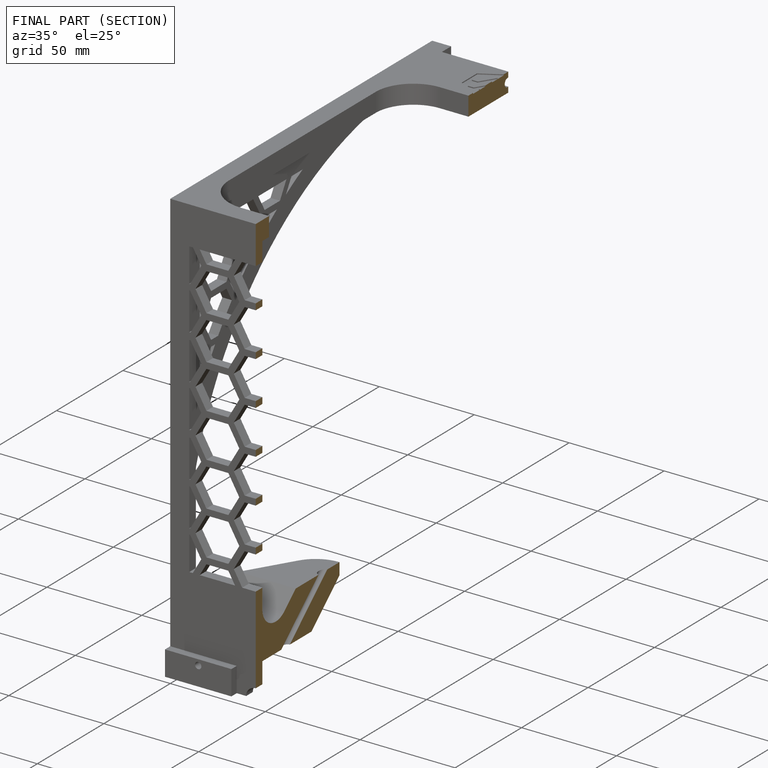
[diagram: finished part — half-section view (interior)]
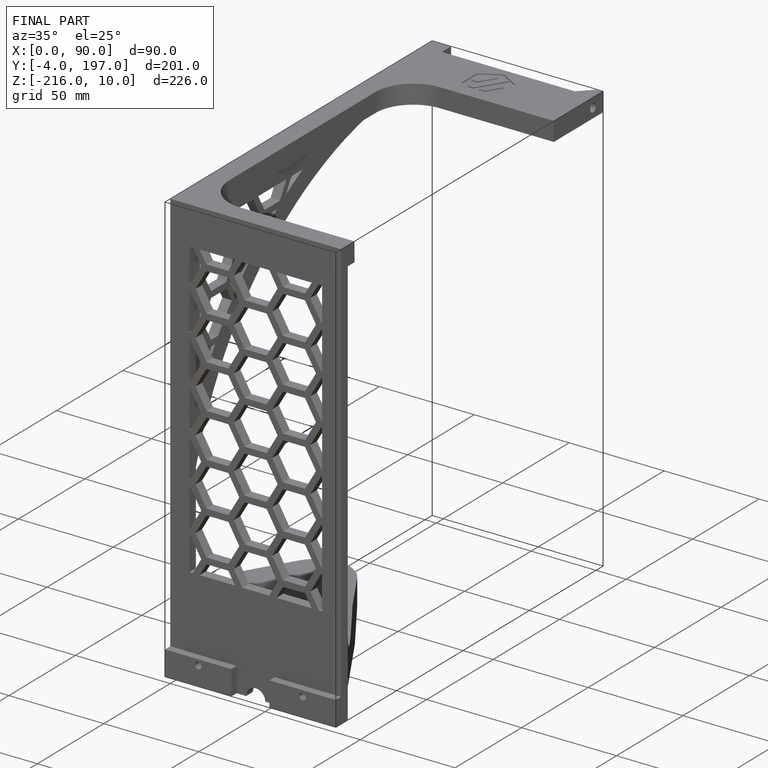
[diagram: finished part — iso view with bounding-box wireframe]
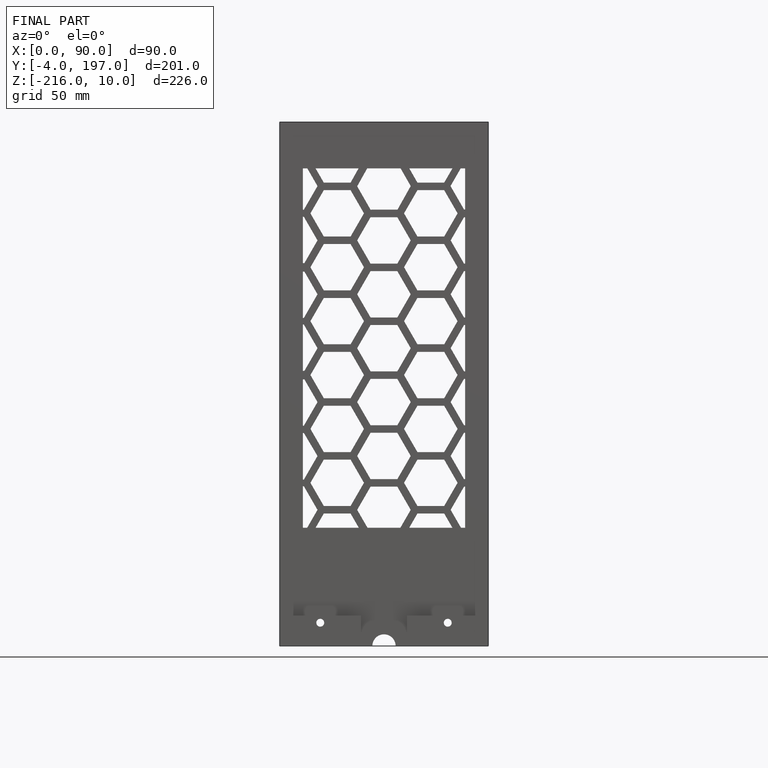
[diagram: finished part — front view with bounding-box wireframe]
